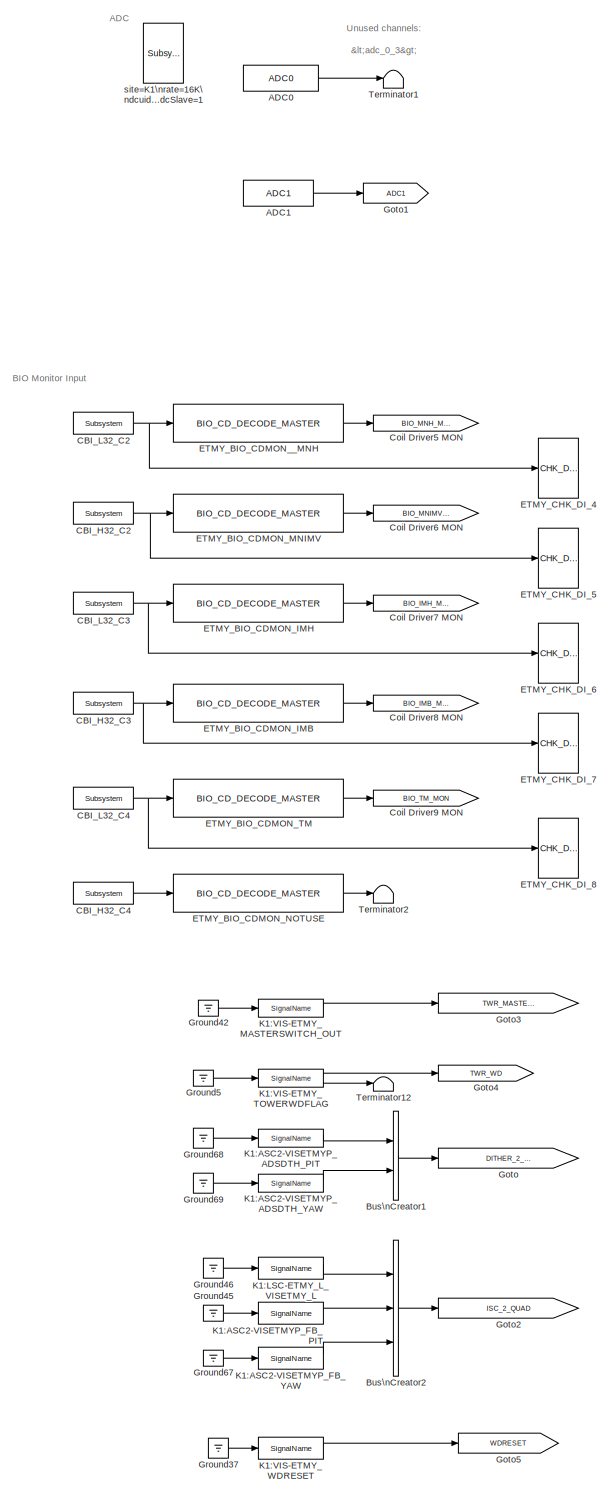
[diagram: root canvas - part 1/3, left side, full height]
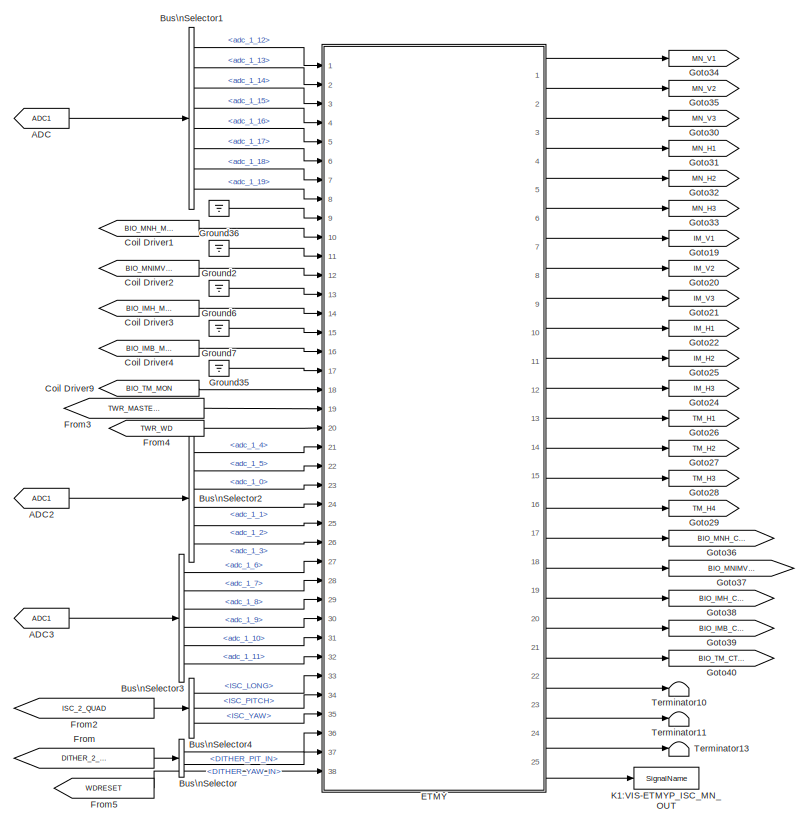
[diagram: root canvas - part 2/3, bottom center region]
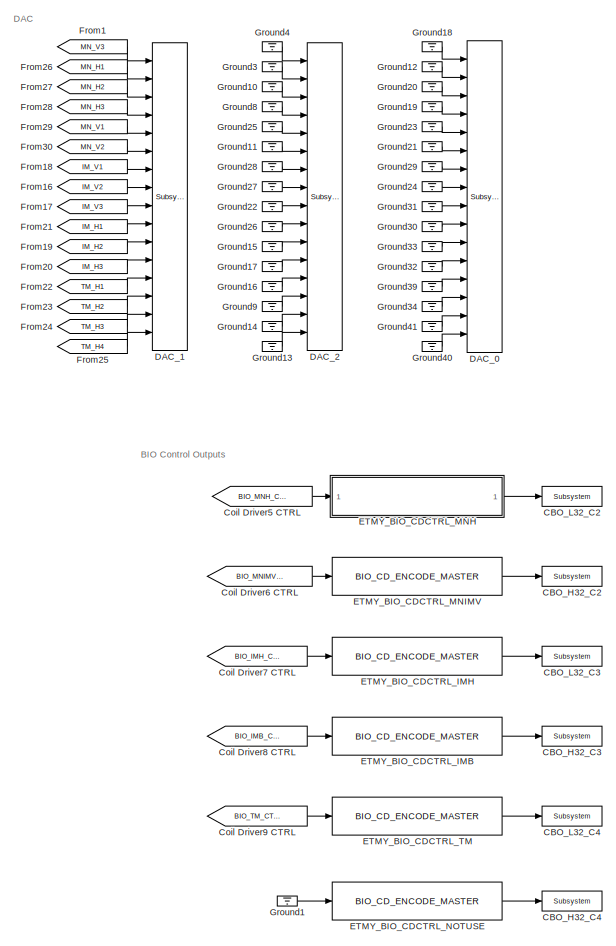
[diagram: root canvas - part 3/3, bottom right region]
MODEL k1visetmyp
KIND model
BLOCK [From] ADC
  GotoTag = ADC1
  SID = 519
BLOCK [Reference] ADC0  REF=cdsAdcx0/ADC0
  AttributesFormatString = %<Description>\\n%<Tag>
  Description = type-GSC_16AI64SSA\ncard_num=0
  Ports = [0, 1]
  SID = 727
  SourceBlock = cdsAdcx0/ADC0
  SourceType = SubSystem
  Tag = cdsAdc
BLOCK [Reference] ADC1  REF=cdsAdcx1/ADC1
  AttributesFormatString = %<Description>\\n%<Tag>
  Description = type-GSC_16AI64SSA\ncard_num=1
  Ports = [0, 1]
  SID = 111
  SourceBlock = cdsAdcx1/ADC1
  SourceType = SubSystem
  Tag = cdsAdc
BLOCK [From] ADC2
  GotoTag = ADC1
  SID = 1117
BLOCK [From] ADC3
  GotoTag = ADC1
  SID = 1119
BLOCK [BusCreator] Bus\nCreator1
  DisplayOption = bar
  InheritFromInputs = on
  Inputs = 'DITHER_PIT_IN','DITHER_YAW_IN'
  Ports = [2, 1]
  SID = 1125
BLOCK [BusCreator] Bus\nCreator2
  DisplayOption = bar
  InheritFromInputs = on
  Inputs = 'ISC_LONG','ISC_PITCH','ISC_YAW'
  Ports = [3, 1]
  SID = 1132
BLOCK [BusSelector] Bus\nSelector
  OutputSignals = DITHER_PIT_IN,DITHER_YAW_IN
  Ports = [1, 2]
  SID = 1126
BLOCK [BusSelector] Bus\nSelector1
  OutputSignals = adc_1_12,adc_1_13,adc_1_14,adc_1_15,adc_1_16,adc_1_17,adc_1_18,adc_1_19
  Ports = [1, 8]
  SID = 696
BLOCK [BusSelector] Bus\nSelector2
  OutputSignals = adc_1_4,adc_1_5,adc_1_0,adc_1_1,adc_1_2,adc_1_3
  Ports = [1, 6]
  SID = 1118
BLOCK [BusSelector] Bus\nSelector3
  OutputSignals = adc_1_6,adc_1_7,adc_1_8,adc_1_9,adc_1_10,adc_1_11
  Ports = [1, 6]
  SID = 1120
BLOCK [BusSelector] Bus\nSelector4
  OutputSignals = ISC_LONG,ISC_PITCH,ISC_YAW
  Ports = [1, 3]
  SID = 1136
BLOCK [Reference] CBI_H32_C2  REF=cdsCDI64/Subsystem
  AttributesFormatString = %<Tag>\\n%<Description>
  Description = card_num=5
  Ports = [0, 1]
  SID = 624
  SourceBlock = cdsCDI64/Subsystem
  SourceType = SubSystem
  Tag = cdsCDI64
BLOCK [Reference] CBI_H32_C3  REF=cdsCDI64/Subsystem
  AttributesFormatString = %<Tag>\\n%<Description>
  Description = card_num=7
  Ports = [0, 1]
  SID = 625
  SourceBlock = cdsCDI64/Subsystem
  SourceType = SubSystem
  Tag = cdsCDI64
BLOCK [Reference] CBI_H32_C4  REF=cdsCDI64/Subsystem
  AttributesFormatString = %<Tag>\\n%<Description>
  Description = card_num=9
  Ports = [0, 1]
  SID = 626
  SourceBlock = cdsCDI64/Subsystem
  SourceType = SubSystem
  Tag = cdsCDI64
BLOCK [Reference] CBI_L32_C2  REF=cdsCDI64/Subsystem
  AttributesFormatString = %<Tag>\\n%<Description>
  Description = card_num=4
  Ports = [0, 1]
  SID = 627
  SourceBlock = cdsCDI64/Subsystem
  SourceType = SubSystem
  Tag = cdsCDI64
BLOCK [Reference] CBI_L32_C3  REF=cdsCDI64/Subsystem
  AttributesFormatString = %<Tag>\\n%<Description>
  Description = card_num=6
  Ports = [0, 1]
  SID = 628
  SourceBlock = cdsCDI64/Subsystem
  SourceType = SubSystem
  Tag = cdsCDI64
BLOCK [Reference] CBI_L32_C4  REF=cdsCDI64/Subsystem
  AttributesFormatString = %<Tag>\\n%<Description>
  Description = card_num=8
  Ports = [0, 1]
  SID = 629
  SourceBlock = cdsCDI64/Subsystem
  SourceType = SubSystem
  Tag = cdsCDI64
BLOCK [Reference] CBO_H32_C2  REF=cdsCDO64/Subsystem
  AttributesFormatString = %<Tag>\\n%<Description>
  Description = card_num=5
  Ports = [1]
  SID = 549
  SourceBlock = cdsCDO64/Subsystem
  SourceType = SubSystem
  Tag = cdsCDO64
BLOCK [Reference] CBO_H32_C3  REF=cdsCDO64/Subsystem
  AttributesFormatString = %<Tag>\\n%<Description>
  Description = card_num=7
  Ports = [1]
  SID = 550
  SourceBlock = cdsCDO64/Subsystem
  SourceType = SubSystem
  Tag = cdsCDO64
BLOCK [Reference] CBO_H32_C4  REF=cdsCDO64/Subsystem
  AttributesFormatString = %<Tag>\\n%<Description>
  Description = card_num=9
  Ports = [1]
  SID = 551
  SourceBlock = cdsCDO64/Subsystem
  SourceType = SubSystem
  Tag = cdsCDO64
BLOCK [Reference] CBO_L32_C2  REF=cdsCDO64/Subsystem
  AttributesFormatString = %<Tag>\\n%<Description>
  Description = card_num=4
  Ports = [1]
  SID = 552
  SourceBlock = cdsCDO64/Subsystem
  SourceType = SubSystem
  Tag = cdsCDO64
BLOCK [Reference] CBO_L32_C3  REF=cdsCDO64/Subsystem
  AttributesFormatString = %<Tag>\\n%<Description>
  Description = card_num=6
  Ports = [1]
  SID = 553
  SourceBlock = cdsCDO64/Subsystem
  SourceType = SubSystem
  Tag = cdsCDO64
BLOCK [Reference] CBO_L32_C4  REF=cdsCDO64/Subsystem
  AttributesFormatString = %<Tag>\\n%<Description>
  Description = card_num=8
  Ports = [1]
  SID = 554
  SourceBlock = cdsCDO64/Subsystem
  SourceType = SubSystem
  Tag = cdsCDO64
BLOCK [From] Coil Driver1
  GotoTag = BIO_MNH_MON
  SID = 618
BLOCK [From] Coil Driver2
  GotoTag = BIO_MNIMV_MON
  SID = 619
BLOCK [From] Coil Driver3
  GotoTag = BIO_IMH_MON
  SID = 620
BLOCK [From] Coil Driver4
  GotoTag = BIO_IMB_MON
  SID = 621
BLOCK [From] Coil Driver5 CTRL
  GotoTag = BIO_MNH_CTRL
  SID = 555
BLOCK [Goto] Coil Driver5 MON
  GotoTag = BIO_MNH_MON
  SID = 630
BLOCK [From] Coil Driver6 CTRL
  GotoTag = BIO_MNIMV_CTRL
  SID = 556
BLOCK [Goto] Coil Driver6 MON
  GotoTag = BIO_MNIMV_MON
  SID = 631
BLOCK [From] Coil Driver7 CTRL
  GotoTag = BIO_IMH_CTRL
  SID = 557
BLOCK [Goto] Coil Driver7 MON
  GotoTag = BIO_IMH_MON
  SID = 632
BLOCK [From] Coil Driver8 CTRL
  GotoTag = BIO_IMB_CTRL
  SID = 558
BLOCK [Goto] Coil Driver8 MON
  GotoTag = BIO_IMB_MON
  SID = 633
BLOCK [From] Coil Driver9
  GotoTag = BIO_TM_MON
  SID = 622
BLOCK [From] Coil Driver9 CTRL
  GotoTag = BIO_TM_CTRL
  SID = 559
BLOCK [Goto] Coil Driver9 MON
  GotoTag = BIO_TM_MON
  SID = 634
BLOCK [Reference] DAC_0  REF=dac/Subsystem  (lib defined in slx_40ef132df75b, slx_b7657ccccc5b, +4 more)
  AttributesFormatString = %<Description>
  Description = type=GSC_16AO16,\ncard_num=0
  Ports = [16]
  SID = 729
  SourceBlock = dac/Subsystem
  SourceType = SubSystem
BLOCK [Reference] DAC_1  REF=dac/Subsystem  (lib defined in slx_40ef132df75b, slx_b7657ccccc5b, +4 more)
  AttributesFormatString = %<Description>
  Description = type=GSC_16AO16,\ncard_num=1
  Ports = [16]
  SID = 112
  SourceBlock = dac/Subsystem
  SourceType = SubSystem
BLOCK [Reference] DAC_2  REF=dac/Subsystem  (lib defined in slx_40ef132df75b, slx_b7657ccccc5b, +4 more)
  AttributesFormatString = %<Description>
  Description = type=GSC_16AO16,\ncard_num=2
  Ports = [16]
  SID = 643
  SourceBlock = dac/Subsystem
  SourceType = SubSystem
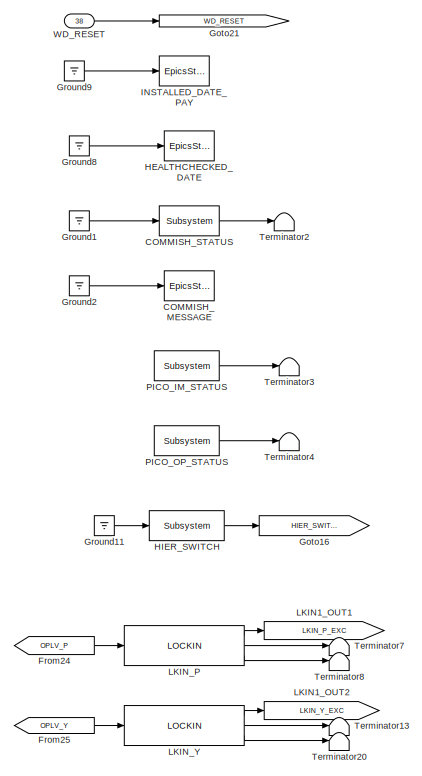
[diagram: ETMY - part 1/6, top right region]
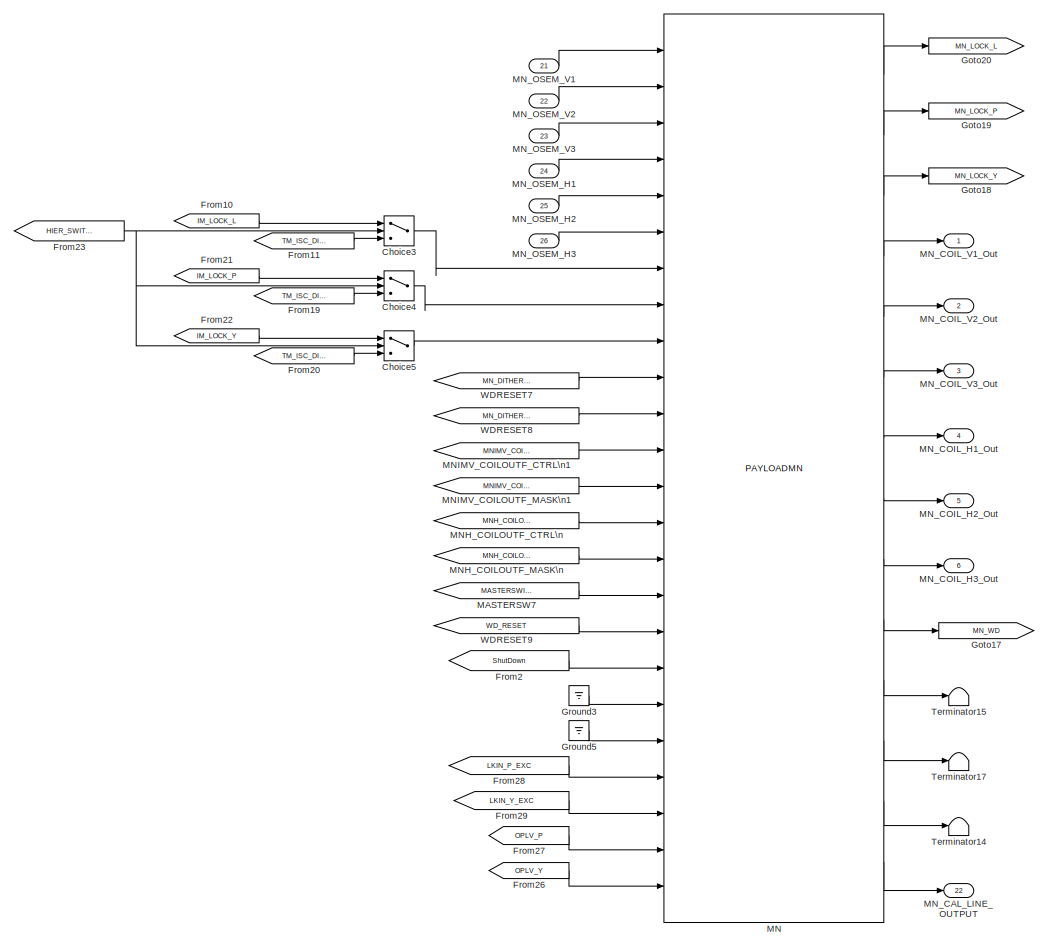
[diagram: ETMY - part 2/6, top left region]
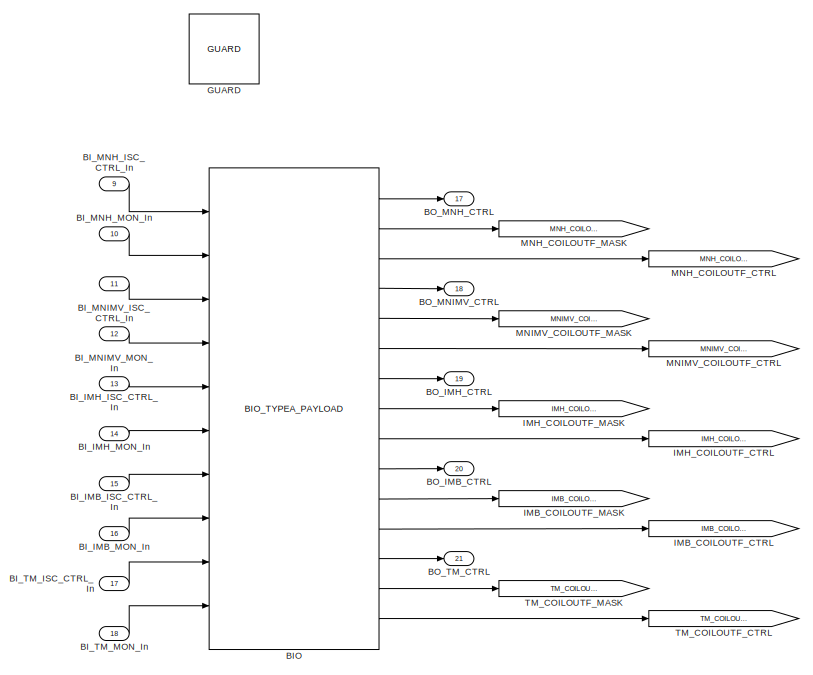
[diagram: ETMY - part 3/6, middle right region]
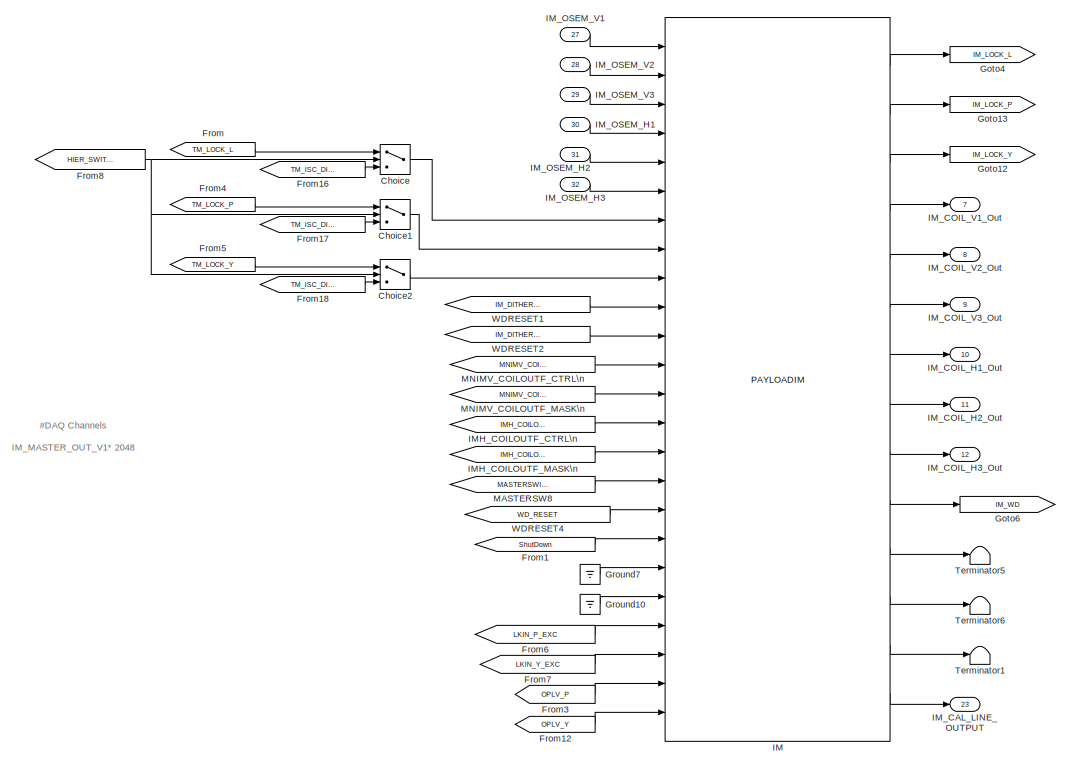
[diagram: ETMY - part 4/6, middle left region]
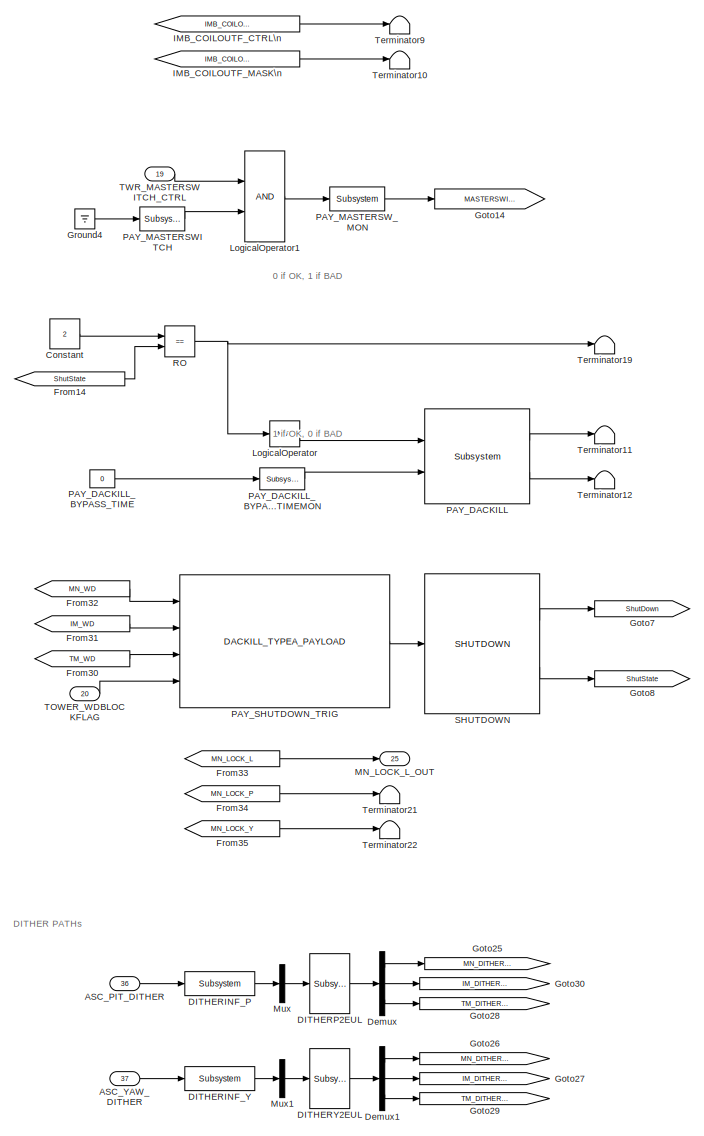
[diagram: ETMY - part 5/6, bottom right region]
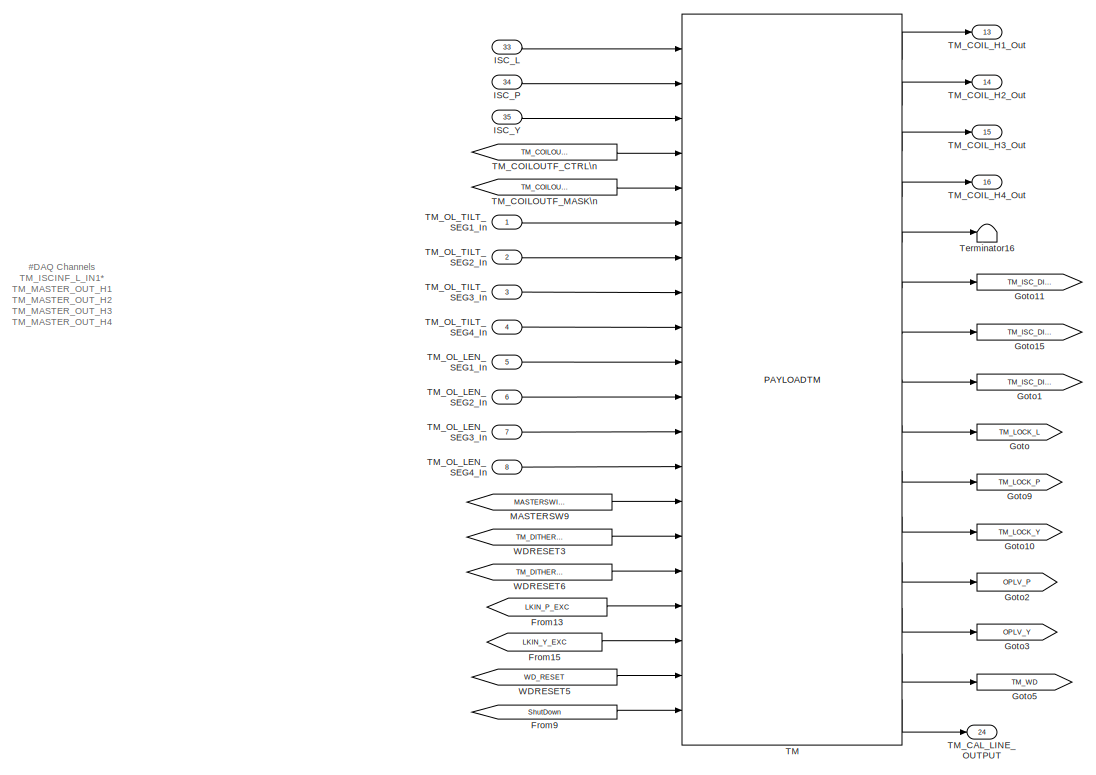
[diagram: ETMY - part 6/6, bottom left region]
BLOCK [SubSystem] ETMY
  AncestorBlock = TYPEA_MASTER/TYPEA_PAYLOAD_MASTER_EMPTY
  Ports = [38, 25]
  RequestExecContextInheritance = off
  SID = 1086
  Variant = off
BLOCK [Inport] ETMY/ASC_PIT_DITHER
  IconDisplay = Port number
  Port = 36
  SID = 1086:4712
BLOCK [Inport] ETMY/ASC_YAW_DITHER
  IconDisplay = Port number
  Port = 37
  SID = 1086:4713
BLOCK [Reference] ETMY/BIO  REF=BIO_TYPEA_MASTER/BIO_TYPEA_PAYLOAD
  Ports = [10, 15]
  SID = 1086:4275
  SourceBlock = BIO_TYPEA_MASTER/BIO_TYPEA_PAYLOAD
  SourceType = SubSystem
BLOCK [Inport] ETMY/BI_IMB_ISC_CTRL_In
  IconDisplay = Port number
  Port = 15
  SID = 1086:4236
BLOCK [Inport] ETMY/BI_IMB_MON_In
  IconDisplay = Port number
  Port = 16
  SID = 1086:4237
BLOCK [Inport] ETMY/BI_IMH_ISC_CTRL_In
  IconDisplay = Port number
  Port = 13
  SID = 1086:4234
BLOCK [Inport] ETMY/BI_IMH_MON_In
  IconDisplay = Port number
  Port = 14
  SID = 1086:4235
BLOCK [Inport] ETMY/BI_MNH_ISC_CTRL_In
  IconDisplay = Port number
  Port = 9
  SID = 1086:4230
BLOCK [Inport] ETMY/BI_MNH_MON_In
  IconDisplay = Port number
  Port = 10
  SID = 1086:4231
BLOCK [Inport] ETMY/BI_MNIMV_ISC_CTRL_In
  IconDisplay = Port number
  Port = 11
  SID = 1086:4232
BLOCK [Inport] ETMY/BI_MNIMV_MON_In
  IconDisplay = Port number
  Port = 12
  SID = 1086:4233
BLOCK [Inport] ETMY/BI_TM_ISC_CTRL_In
  IconDisplay = Port number
  Port = 17
  SID = 1086:4238
BLOCK [Inport] ETMY/BI_TM_MON_In
  IconDisplay = Port number
  Port = 18
  SID = 1086:4239
BLOCK [Outport] ETMY/BO_IMB_CTRL
  IconDisplay = Port number
  Port = 20
  SID = 1086:4496
BLOCK [Outport] ETMY/BO_IMH_CTRL
  IconDisplay = Port number
  Port = 19
  SID = 1086:4495
BLOCK [Outport] ETMY/BO_MNH_CTRL
  IconDisplay = Port number
  Port = 17
  SID = 1086:4493
BLOCK [Outport] ETMY/BO_MNIMV_CTRL
  IconDisplay = Port number
  Port = 18
  SID = 1086:4494
BLOCK [Outport] ETMY/BO_TM_CTRL
  IconDisplay = Port number
  Port = 21
  SID = 1086:4497
BLOCK [Reference] ETMY/COMMISH_MESSAGE  REF=cdsEpicsStringIn/EpicsStringIn
  AttributesFormatString = %<Tag>
  Description = cdsEpicsStringIn
  Ports = [1]
  SID = 1086:4276
  SourceBlock = cdsEpicsStringIn/EpicsStringIn
  SourceType = SubSystem
  Tag = cdsEpicsStringIn
BLOCK [Reference] ETMY/COMMISH_STATUS  REF=cdsEpicsBinIn/Subsystem
  AttributesFormatString = %<Tag>
  Description = Purpose:                                                                            \nCreate an EPICS binary (0 or 1) input channel to the FE realtime controls.          \n                                                                                    \nOperation:                                                                          \nOutputs value from an EPICS ai record. Value is binary i...<+252ch>  <repeated x4 — deduplicated; at blocks: COMMISH_STATUS, HIER_SWITCH, PAY_MASTERSWITCH, WD_RESET>
  Ports = [1, 1]
  SID = 1086:4277
  SourceBlock = cdsEpicsBinIn/Subsystem
  SourceType = SubSystem
  Tag = cdsEpicsBinIn
BLOCK [Switch] ETMY/Choice
  InputSameDT = off
  SID = 1086:4626
  SaturateOnIntegerOverflow = off
  Threshold = 0.5
BLOCK [Switch] ETMY/Choice1
  InputSameDT = off
  SID = 1086:4627
  SaturateOnIntegerOverflow = off
  Threshold = 0.5
BLOCK [Switch] ETMY/Choice2
  InputSameDT = off
  SID = 1086:4628
  SaturateOnIntegerOverflow = off
  Threshold = 0.5
BLOCK [Switch] ETMY/Choice3
  InputSameDT = off
  SID = 1086:4652
  SaturateOnIntegerOverflow = off
  Threshold = 0.5
BLOCK [Switch] ETMY/Choice4
  InputSameDT = off
  SID = 1086:4653
  SaturateOnIntegerOverflow = off
  Threshold = 0.5
BLOCK [Switch] ETMY/Choice5
  InputSameDT = off
  SID = 1086:4654
  SaturateOnIntegerOverflow = off
  Threshold = 0.5
BLOCK [Constant] ETMY/Constant
  SID = 1086:4286
  Value = 2
BLOCK [Reference] ETMY/DITHERINF_P  REF=cdsFilt/Subsystem
  AttributesFormatString = %<Tag>
  Description = Purpose:                                                                                                                                                                                                                                  \nStandard CDS IIR filter module.                                                                                                                                     ...<+1302ch>
  Ports = [1, 1]
  SID = 1086:4714
  SourceBlock = cdsFilt/Subsystem
  SourceType = SubSystem
  Tag = cdsFilt
BLOCK [Reference] ETMY/DITHERINF_Y  REF=cdsFilt/Subsystem
  AttributesFormatString = %<Tag>
  Description = Purpose:                                                                                                                                                                                                                                  \nStandard CDS IIR filter module.                                                                                                                                     ...<+1302ch>
  Ports = [1, 1]
  SID = 1086:4715
  SourceBlock = cdsFilt/Subsystem
  SourceType = SubSystem
  Tag = cdsFilt
BLOCK [Reference] ETMY/DITHERP2EUL  REF=cdsMuxMatrix/Subsystem
  AttributesFormatString = %<Tag>
  Description = Any size matrix. Inputs and outputs must be connected using Mux and Demux parts.
  Ports = [1, 1]
  SID = 1086:4716
  SourceBlock = cdsMuxMatrix/Subsystem
  SourceType = SubSystem
  Tag = cdsMuxMatrix
BLOCK [Reference] ETMY/DITHERY2EUL  REF=cdsMuxMatrix/Subsystem
  AttributesFormatString = %<Tag>
  Description = Any size matrix. Inputs and outputs must be connected using Mux and Demux parts.
  Ports = [1, 1]
  SID = 1086:4717
  SourceBlock = cdsMuxMatrix/Subsystem
  SourceType = SubSystem
  Tag = cdsMuxMatrix
BLOCK [Demux] ETMY/Demux
  DisplayOption = bar
  Outputs = 3
  Ports = [1, 3]
  SID = 1086:4718
BLOCK [Demux] ETMY/Demux1
  DisplayOption = bar
  Outputs = 3
  Ports = [1, 3]
  SID = 1086:4719
BLOCK [From] ETMY/From
  CloseFcn = tagdialog Close
  GotoTag = TM_LOCK_L
  SID = 1086:4629
BLOCK [From] ETMY/From1
  GotoTag = ShutDown
  SID = 1086:4528
BLOCK [From] ETMY/From10
  CloseFcn = tagdialog Close
  GotoTag = IM_LOCK_L
  SID = 1086:4655
BLOCK [From] ETMY/From11
  GotoTag = TM_ISC_DIST_L
  SID = 1086:4656
BLOCK [From] ETMY/From12
  CloseFcn = tagdialog Close
  GotoTag = OPLV_Y
  SID = 1086:4606
BLOCK [From] ETMY/From13
  GotoTag = LKIN_P_EXC
  SID = 1086:4597
BLOCK [From] ETMY/From14
  GotoTag = ShutState
  SID = 1086:4295
BLOCK [From] ETMY/From15
  GotoTag = LKIN_Y_EXC
  SID = 1086:4598
BLOCK [From] ETMY/From16
  GotoTag = TM_ISC_DIST_L
  SID = 1086:4630
BLOCK [From] ETMY/From17
  GotoTag = TM_ISC_DIST_P
  SID = 1086:4631
BLOCK [From] ETMY/From18
  GotoTag = TM_ISC_DIST_Y
  SID = 1086:4632
BLOCK [From] ETMY/From19
  GotoTag = TM_ISC_DIST_P
  SID = 1086:4657
BLOCK [From] ETMY/From2
  GotoTag = ShutDown
  SID = 1086:4529
BLOCK [From] ETMY/From20
  GotoTag = TM_ISC_DIST_Y
  SID = 1086:4658
BLOCK [From] ETMY/From21
  CloseFcn = tagdialog Close
  GotoTag = IM_LOCK_P
  SID = 1086:4659
BLOCK [From] ETMY/From22
  CloseFcn = tagdialog Close
  GotoTag = IM_LOCK_Y
  SID = 1086:4660
BLOCK [From] ETMY/From23
  GotoTag = HIER_SWITCH
  SID = 1086:4661
BLOCK [From] ETMY/From24
  CloseFcn = tagdialog Close
  GotoTag = OPLV_P
  SID = 1086:4662
BLOCK [From] ETMY/From25
  CloseFcn = tagdialog Close
  GotoTag = OPLV_Y
  SID = 1086:4663
BLOCK [From] ETMY/From26
  CloseFcn = tagdialog Close
  GotoTag = OPLV_Y
  SID = 1086:4672
BLOCK [From] ETMY/From27
  CloseFcn = tagdialog Close
  GotoTag = OPLV_P
  SID = 1086:4673
BLOCK [From] ETMY/From28
  GotoTag = LKIN_P_EXC
  SID = 1086:4674
BLOCK [From] ETMY/From29
  GotoTag = LKIN_Y_EXC
  SID = 1086:4675
BLOCK [From] ETMY/From3
  CloseFcn = tagdialog Close
  GotoTag = OPLV_P
  SID = 1086:4609
BLOCK [From] ETMY/From30
  GotoTag = TM_WD
  SID = 1086:4682
BLOCK [From] ETMY/From31
  GotoTag = IM_WD
  SID = 1086:4683
BLOCK [From] ETMY/From32
  GotoTag = MN_WD
  SID = 1086:4684
BLOCK [From] ETMY/From33
  GotoTag = MN_LOCK_L
  SID = 1086:4695
BLOCK [From] ETMY/From34
  GotoTag = MN_LOCK_P
  SID = 1086:4696
BLOCK [From] ETMY/From35
  GotoTag = MN_LOCK_Y
  SID = 1086:4697
BLOCK [From] ETMY/From4
  CloseFcn = tagdialog Close
  GotoTag = TM_LOCK_P
  SID = 1086:4633
BLOCK [From] ETMY/From5
  CloseFcn = tagdialog Close
  GotoTag = TM_LOCK_Y
  SID = 1086:4634
BLOCK [From] ETMY/From6
  GotoTag = LKIN_P_EXC
  SID = 1086:4607
BLOCK [From] ETMY/From7
  GotoTag = LKIN_Y_EXC
  SID = 1086:4608
BLOCK [From] ETMY/From8
  GotoTag = HIER_SWITCH
  SID = 1086:4649
BLOCK [From] ETMY/From9
  GotoTag = ShutDown
  SID = 1086:4349
BLOCK [Reference] ETMY/GUARD  REF=ISC_common/GUARD
  Ports = []
  SID = 1086:4350
  SourceBlock = ISC_common/GUARD
  SourceType = SubSystem
BLOCK [Goto] ETMY/Goto
  GotoTag = TM_LOCK_L
  SID = 1086:4587
BLOCK [Goto] ETMY/Goto1
  GotoTag = TM_ISC_DIST_Y
  SID = 1086:4590
BLOCK [Goto] ETMY/Goto10
  GotoTag = TM_LOCK_Y
  SID = 1086:4588
BLOCK [Goto] ETMY/Goto11
  GotoTag = TM_ISC_DIST_L
  SID = 1086:4589
BLOCK [Goto] ETMY/Goto12
  GotoTag = IM_LOCK_Y
  SID = 1086:4640
BLOCK [Goto] ETMY/Goto13
  GotoTag = IM_LOCK_P
  SID = 1086:4641
BLOCK [Goto] ETMY/Goto14
  GotoTag = MASTERSWITCH
  SID = 1086:4353
BLOCK [Goto] ETMY/Goto15
  GotoTag = TM_ISC_DIST_P
  SID = 1086:4591
BLOCK [Goto] ETMY/Goto16
  GotoTag = HIER_SWITCH
  SID = 1086:4648
BLOCK [Goto] ETMY/Goto17
  GotoTag = MN_WD
  SID = 1086:4677
BLOCK [Goto] ETMY/Goto18
  GotoTag = MN_LOCK_Y
  SID = 1086:4691
BLOCK [Goto] ETMY/Goto19
  GotoTag = MN_LOCK_P
  SID = 1086:4692
BLOCK [Goto] ETMY/Goto2
  GotoTag = OPLV_P
  SID = 1086:4593
BLOCK [Goto] ETMY/Goto20
  GotoTag = MN_LOCK_L
  SID = 1086:4693
BLOCK [Goto] ETMY/Goto21
  GotoTag = WD_RESET
  SID = 1086:4736
BLOCK [Goto] ETMY/Goto25
  GotoTag = MN_DITHER_PIT
  SID = 1086:4708
BLOCK [Goto] ETMY/Goto26
  GotoTag = MN_DITHER_YAW
  SID = 1086:4709
BLOCK [Goto] ETMY/Goto27
  GotoTag = IM_DITHER_YAW
  SID = 1086:4720
BLOCK [Goto] ETMY/Goto28
  GotoTag = TM_DITHER_PIT
  SID = 1086:4721
BLOCK [Goto] ETMY/Goto29
  GotoTag = TM_DITHER_YAW
  SID = 1086:4722
BLOCK [Goto] ETMY/Goto3
  GotoTag = OPLV_Y
  SID = 1086:4594
BLOCK [Goto] ETMY/Goto30
  GotoTag = IM_DITHER_PIT
  SID = 1086:4723
BLOCK [Goto] ETMY/Goto4
  GotoTag = IM_LOCK_L
  SID = 1086:4639
BLOCK [Goto] ETMY/Goto5
  GotoTag = TM_WD
  SID = 1086:4592
BLOCK [Goto] ETMY/Goto6
  GotoTag = IM_WD
  SID = 1086:4602
BLOCK [Goto] ETMY/Goto7
  GotoTag = ShutDown
  SID = 1086:4355
BLOCK [Goto] ETMY/Goto8
  GotoTag = ShutState
  SID = 1086:4356
BLOCK [Goto] ETMY/Goto9
  GotoTag = TM_LOCK_P
  SID = 1086:4595
BLOCK [Ground] ETMY/Ground1
  SID = 1086:4392
BLOCK [Ground] ETMY/Ground10
  SID = 1086:4611
BLOCK [Ground] ETMY/Ground11
  SID = 1086:4635
BLOCK [Ground] ETMY/Ground2
  SID = 1086:4393
BLOCK [Ground] ETMY/Ground3
  SID = 1086:4701
BLOCK [Ground] ETMY/Ground4
  SID = 1086:4395
BLOCK [Ground] ETMY/Ground5
  SID = 1086:4702
BLOCK [Ground] ETMY/Ground7
  SID = 1086:4610
BLOCK [Ground] ETMY/Ground8
  SID = 1086:4541
BLOCK [Ground] ETMY/Ground9
  SID = 1086:4550
BLOCK [Reference] ETMY/HEALTHCHECKED_DATE  REF=cdsEpicsStringIn/EpicsStringIn
  AttributesFormatString = %<Tag>
  Description = cdsEpicsStringIn
  Ports = [1]
  SID = 1086:4540
  SourceBlock = cdsEpicsStringIn/EpicsStringIn
  SourceType = SubSystem
  Tag = cdsEpicsStringIn
BLOCK [Reference] ETMY/HIER_SWITCH  REF=cdsEpicsBinIn/Subsystem
  AttributesFormatString = %<Tag>
  Ports = [1, 1]
  SID = 1086:4636
  SourceBlock = cdsEpicsBinIn/Subsystem
  SourceType = SubSystem
  Tag = cdsEpicsBinIn
BLOCK [Reference] ETMY/IM  REF=PAYLOAD_MASTER/PAYLOADIM
  Description = SIXOSEMSTAGE_FACE_MASTER
  Ports = [24, 14]
  SID = 1086:4579
  SourceBlock = PAYLOAD_MASTER/PAYLOADIM
  SourceType = SubSystem
BLOCK [Goto] ETMY/IMB_COILOUTF_CTRL
  GotoTag = IMB_COILOUTF_CTRL
  SID = 1086:4398
BLOCK [From] ETMY/IMB_COILOUTF_CTRL\n
  CloseFcn = tagdialog Close
  GotoTag = IMB_COILOUTF_CTRL
  SID = 1086:4399
BLOCK [Goto] ETMY/IMB_COILOUTF_MASK
  GotoTag = IMB_COILOUTF_MASK
  SID = 1086:4400
BLOCK [From] ETMY/IMB_COILOUTF_MASK\n
  CloseFcn = tagdialog Close
  GotoTag = IMB_COILOUTF_MASK
  SID = 1086:4401
BLOCK [Goto] ETMY/IMH_COILOUTF_CTRL
  GotoTag = IMH_COILOUTF_CTRL
  SID = 1086:4402
BLOCK [From] ETMY/IMH_COILOUTF_CTRL\n
  CloseFcn = tagdialog Close
  GotoTag = IMH_COILOUTF_CTRL
  SID = 1086:4403
BLOCK [Goto] ETMY/IMH_COILOUTF_MASK
  GotoTag = IMH_COILOUTF_MASK
  SID = 1086:4404
BLOCK [From] ETMY/IMH_COILOUTF_MASK\n
  CloseFcn = tagdialog Close
  GotoTag = IMH_COILOUTF_MASK
  SID = 1086:4405
BLOCK [Outport] ETMY/IM_CAL_LINE_OUTPUT
  IconDisplay = Port number
  Port = 23
  SID = 1086:4732
BLOCK [Outport] ETMY/IM_COIL_H1_Out
  IconDisplay = Port number
  Port = 10
  SID = 1086:4486
BLOCK [Outport] ETMY/IM_COIL_H2_Out
  IconDisplay = Port number
  Port = 11
  SID = 1086:4487
BLOCK [Outport] ETMY/IM_COIL_H3_Out
  IconDisplay = Port number
  Port = 12
  SID = 1086:4488
BLOCK [Outport] ETMY/IM_COIL_V1_Out
  IconDisplay = Port number
  Port = 7
  SID = 1086:4483
BLOCK [Outport] ETMY/IM_COIL_V2_Out
  IconDisplay = Port number
  Port = 8
  SID = 1086:4484
BLOCK [Outport] ETMY/IM_COIL_V3_Out
  IconDisplay = Port number
  Port = 9
  SID = 1086:4485
BLOCK [Inport] ETMY/IM_OSEM_H1
  IconDisplay = Port number
  Port = 30
  SID = 1086:4268
BLOCK [Inport] ETMY/IM_OSEM_H2
  IconDisplay = Port number
  Port = 31
  SID = 1086:4269
BLOCK [Inport] ETMY/IM_OSEM_H3
  IconDisplay = Port number
  Port = 32
  SID = 1086:4270
BLOCK [Inport] ETMY/IM_OSEM_V1
  IconDisplay = Port number
  Port = 27
  SID = 1086:4265
BLOCK [Inport] ETMY/IM_OSEM_V2
  IconDisplay = Port number
  Port = 28
  SID = 1086:4266
BLOCK [Inport] ETMY/IM_OSEM_V3
  IconDisplay = Port number
  Port = 29
  SID = 1086:4267
BLOCK [Reference] ETMY/INSTALLED_DATE_PAY  REF=cdsEpicsStringIn/EpicsStringIn
  AttributesFormatString = %<Tag>
  Description = cdsEpicsStringIn
  Ports = [1]
  SID = 1086:4551
  SourceBlock = cdsEpicsStringIn/EpicsStringIn
  SourceType = SubSystem
  Tag = cdsEpicsStringIn
BLOCK [Inport] ETMY/ISC_L
  IconDisplay = Port number
  Port = 33
  SID = 1086:4581
BLOCK [Inport] ETMY/ISC_P
  IconDisplay = Port number
  Port = 34
  SID = 1086:4582
BLOCK [Inport] ETMY/ISC_Y
  IconDisplay = Port number
  Port = 35
  SID = 1086:4583
BLOCK [Goto] ETMY/LKIN1_OUT1
  GotoTag = LKIN_P_EXC
  SID = 1086:4664
BLOCK [Goto] ETMY/LKIN1_OUT2
  GotoTag = LKIN_Y_EXC
  SID = 1086:4665
BLOCK [Reference] ETMY/LKIN_P  REF=lockin/LOCKIN
  AttributesFormatString = %<Tag>
  Description = ADL=LOCKIN.adl
  Ports = [1, 3]
  SID = 1086:4666
  SourceBlock = lockin/LOCKIN
  SourceType = SubSystem
BLOCK [Reference] ETMY/LKIN_Y  REF=lockin/LOCKIN
  AttributesFormatString = %<Tag>
  Description = ADL=LOCKIN.adl
  Ports = [1, 3]
  SID = 1086:4667
  SourceBlock = lockin/LOCKIN
  SourceType = SubSystem
BLOCK [Logic] ETMY/LogicalOperator
  AllPortsSameDT = off
  Operator = NOT
  OutDataTypeStr = boolean
  Ports = [1, 1]
  SID = 1086:4418
BLOCK [Logic] ETMY/LogicalOperator1
  AllPortsSameDT = off
  OutDataTypeStr = boolean
  Ports = [2, 1]
  SID = 1086:4419
BLOCK [From] ETMY/MASTERSW7
  CloseFcn = tagdialog Close
  GotoTag = MASTERSWITCH
  SID = 1086:4420
BLOCK [From] ETMY/MASTERSW8
  CloseFcn = tagdialog Close
  GotoTag = MASTERSWITCH
  SID = 1086:4421
BLOCK [From] ETMY/MASTERSW9
  CloseFcn = tagdialog Close
  GotoTag = MASTERSWITCH
  SID = 1086:4422
BLOCK [Reference] ETMY/MN  REF=PAYLOAD_MASTER/PAYLOADMN
  Description = SIXOSEMSTAGE_FACE_MASTER
  Ports = [24, 14]
  SID = 1086:4578
  SourceBlock = PAYLOAD_MASTER/PAYLOADMN
  SourceType = SubSystem
BLOCK [Goto] ETMY/MNH_COILOUTF_CTRL
  GotoTag = MNH_COILOUTF_CTRL
  SID = 1086:4424
BLOCK [From] ETMY/MNH_COILOUTF_CTRL\n
  CloseFcn = tagdialog Close
  GotoTag = MNH_COILOUTF_CTRL
  SID = 1086:4425
BLOCK [Goto] ETMY/MNH_COILOUTF_MASK
  GotoTag = MNH_COILOUTF_MASK
  SID = 1086:4426
BLOCK [From] ETMY/MNH_COILOUTF_MASK\n
  CloseFcn = tagdialog Close
  GotoTag = MNH_COILOUTF_MASK
  SID = 1086:4427
BLOCK [Goto] ETMY/MNIMV_COILOUTF_CTRL
  GotoTag = MNIMV_COILOUTF_CTRL
  SID = 1086:4428
BLOCK [From] ETMY/MNIMV_COILOUTF_CTRL\n
  CloseFcn = tagdialog Close
  GotoTag = MNIMV_COILOUTF_CTRL
  SID = 1086:4429
BLOCK [From] ETMY/MNIMV_COILOUTF_CTRL\n1
  CloseFcn = tagdialog Close
  GotoTag = MNIMV_COILOUTF_CTRL
  SID = 1086:4430
BLOCK [Goto] ETMY/MNIMV_COILOUTF_MASK
  GotoTag = MNIMV_COILOUTF_MASK
  SID = 1086:4431
BLOCK [From] ETMY/MNIMV_COILOUTF_MASK\n
  CloseFcn = tagdialog Close
  GotoTag = MNIMV_COILOUTF_MASK
  SID = 1086:4432
BLOCK [From] ETMY/MNIMV_COILOUTF_MASK\n1
  CloseFcn = tagdialog Close
  GotoTag = MNIMV_COILOUTF_MASK
  SID = 1086:4433
BLOCK [Outport] ETMY/MN_CAL_LINE_OUTPUT
  IconDisplay = Port number
  Port = 22
  SID = 1086:4731
BLOCK [Outport] ETMY/MN_COIL_H1_Out
  IconDisplay = Port number
  Port = 4
  SID = 1086:4480
BLOCK [Outport] ETMY/MN_COIL_H2_Out
  IconDisplay = Port number
  Port = 5
  SID = 1086:4481
BLOCK [Outport] ETMY/MN_COIL_H3_Out
  IconDisplay = Port number
  Port = 6
  SID = 1086:4482
BLOCK [Outport] ETMY/MN_COIL_V1_Out
  IconDisplay = Port number
  SID = 1086:4477
BLOCK [Outport] ETMY/MN_COIL_V2_Out
  IconDisplay = Port number
  Port = 2
  SID = 1086:4478
BLOCK [Outport] ETMY/MN_COIL_V3_Out
  IconDisplay = Port number
  Port = 3
  SID = 1086:4479
BLOCK [Outport] ETMY/MN_LOCK_L_OUT
  IconDisplay = Port number
  Port = 25
  SID = 1086:4734
BLOCK [Inport] ETMY/MN_OSEM_H1
  IconDisplay = Port number
  Port = 24
  SID = 1086:4262
BLOCK [Inport] ETMY/MN_OSEM_H2
  IconDisplay = Port number
  Port = 25
  SID = 1086:4263
BLOCK [Inport] ETMY/MN_OSEM_H3
  IconDisplay = Port number
  Port = 26
  SID = 1086:4264
BLOCK [Inport] ETMY/MN_OSEM_V1
  IconDisplay = Port number
  Port = 21
  SID = 1086:4259
BLOCK [Inport] ETMY/MN_OSEM_V2
  IconDisplay = Port number
  Port = 22
  SID = 1086:4260
BLOCK [Inport] ETMY/MN_OSEM_V3
  IconDisplay = Port number
  Port = 23
  SID = 1086:4261
BLOCK [Mux] ETMY/Mux
  DisplayOption = bar
  Inputs = 1
  Ports = [1, 1]
  SID = 1086:4724
BLOCK [Mux] ETMY/Mux1
  DisplayOption = bar
  Inputs = 1
  Ports = [1, 1]
  SID = 1086:4725
BLOCK [Reference] ETMY/PAY_DACKILL  REF=cdsDacKill/Subsystem
  AttributesFormatString = %<Description>
  Description = cdsDacKill
  Ports = [2, 2]
  SID = 1086:4434
  SourceBlock = cdsDacKill/Subsystem
  SourceType = SubSystem
BLOCK [Constant] ETMY/PAY_DACKILL_BYPASS_TIME
  SID = 1086:4435
  Value = 0
BLOCK [Reference] ETMY/PAY_DACKILL_BYPASS_TIMEMON  REF=cdsEpicsOut/Subsystem
  AttributesFormatString = %<Tag>
  Description = Purpose:                                          \nOutput a FE signal to an EPICS channel.           \n                                                  \nOperation:                                        \nTakes input value and passes it to EPICS record.  \n                                                  \nUsage:                                            \nName the part with the desired EPICS...<+14ch>  <repeated x3 — deduplicated; at blocks: PAY_DACKILL_BYPASS_TIMEMON, PAY_MASTERSW_MON, DIO_OUT>
  Ports = [1, 1]
  SID = 1086:4436
  SourceBlock = cdsEpicsOut/Subsystem
  SourceType = SubSystem
  Tag = cdsEpicsOutput
BLOCK [Reference] ETMY/PAY_MASTERSWITCH  REF=cdsEpicsBinIn/Subsystem
  AttributesFormatString = %<Tag>
  Ports = [1, 1]
  SID = 1086:4437
  SourceBlock = cdsEpicsBinIn/Subsystem
  SourceType = SubSystem
  Tag = cdsEpicsBinIn
BLOCK [Reference] ETMY/PAY_MASTERSW_MON  REF=cdsEpicsOut/Subsystem
  AttributesFormatString = %<Tag>
  Ports = [1, 1]
  SID = 1086:4438
  SourceBlock = cdsEpicsOut/Subsystem
  SourceType = SubSystem
  Tag = cdsEpicsOutput
BLOCK [Reference] ETMY/PAY_SHUTDOWN_TRIG  REF=VIS_LIB/DACKILL_TYPEA_PAYLOAD
  Ports = [4, 1]
  SID = 1086:4440
  SourceBlock = VIS_LIB/DACKILL_TYPEA_PAYLOAD
  SourceType = SubSystem
BLOCK [Reference] ETMY/PICO_IM_STATUS  REF=cdsEpicsIn/Subsystem
  AttributesFormatString = %<Tag>
  Description = Purpose:                                                                              \nCreate an EPICS input channel connection to the FE realtime controls.                 \n                                                                                      \nOperation:                                                                            \nOutputs value from an EPICS ai record. Value is ...<+266ch>
  Ports = [0, 1]
  SID = 1086:4576
  SourceBlock = cdsEpicsIn/Subsystem
  SourceType = SubSystem
  Tag = cdsEpicsIn
BLOCK [Reference] ETMY/PICO_OP_STATUS  REF=cdsEpicsIn/Subsystem
  AttributesFormatString = %<Tag>
  Description = Purpose:                                                                              \nCreate an EPICS input channel connection to the FE realtime controls.                 \n                                                                                      \nOperation:                                                                            \nOutputs value from an EPICS ai record. Value is ...<+266ch>
  Ports = [0, 1]
  SID = 1086:4577
  SourceBlock = cdsEpicsIn/Subsystem
  SourceType = SubSystem
  Tag = cdsEpicsIn
BLOCK [RelationalOperator] ETMY/RO
  InputSameDT = off
  Operator = ==
  OutDataTypeStr = boolean
  Ports = [2, 1]
  SID = 1086:4441
BLOCK [Reference] ETMY/SHUTDOWN  REF=SHUTDOWN/SHUTDOWN
  Ports = [1, 2]
  SID = 1086:4442
  SourceBlock = SHUTDOWN/SHUTDOWN
  SourceType = SubSystem
BLOCK [Reference] ETMY/TM  REF=PAYLOAD_MASTER/PAYLOADTM
  Ports = [20, 15]
  SID = 1086:4580
  SourceBlock = PAYLOAD_MASTER/PAYLOADTM
  SourceType = SubSystem
BLOCK [Outport] ETMY/TM_CAL_LINE_OUTPUT
  IconDisplay = Port number
  Port = 24
  SID = 1086:4733
BLOCK [Goto] ETMY/TM_COILOUTF_CTRL
  GotoTag = TM_COILOUTF_CTRL
  SID = 1086:4457
BLOCK [From] ETMY/TM_COILOUTF_CTRL\n
  CloseFcn = tagdialog Close
  GotoTag = TM_COILOUTF_CTRL
  SID = 1086:4458
BLOCK [Goto] ETMY/TM_COILOUTF_MASK
  GotoTag = TM_COILOUTF_MASK
  SID = 1086:4462
BLOCK [From] ETMY/TM_COILOUTF_MASK\n
  CloseFcn = tagdialog Close
  GotoTag = TM_COILOUTF_MASK
  SID = 1086:4463
BLOCK [Outport] ETMY/TM_COIL_H1_Out
  IconDisplay = Port number
  Port = 13
  SID = 1086:4489
BLOCK [Outport] ETMY/TM_COIL_H2_Out
  IconDisplay = Port number
  Port = 14
  SID = 1086:4490
BLOCK [Outport] ETMY/TM_COIL_H3_Out
  IconDisplay = Port number
  Port = 15
  SID = 1086:4491
BLOCK [Outport] ETMY/TM_COIL_H4_Out
  IconDisplay = Port number
  Port = 16
  SID = 1086:4492
BLOCK [Inport] ETMY/TM_OL_LEN_SEG1_In
  IconDisplay = Port number
  Port = 5
  SID = 1086:4226
BLOCK [Inport] ETMY/TM_OL_LEN_SEG2_In
  IconDisplay = Port number
  Port = 6
  SID = 1086:4227
BLOCK [Inport] ETMY/TM_OL_LEN_SEG3_In
  IconDisplay = Port number
  Port = 7
  SID = 1086:4228
BLOCK [Inport] ETMY/TM_OL_LEN_SEG4_In
  IconDisplay = Port number
  Port = 8
  SID = 1086:4229
BLOCK [Inport] ETMY/TM_OL_TILT_SEG1_In
  IconDisplay = Port number
  SID = 1086:4222
BLOCK [Inport] ETMY/TM_OL_TILT_SEG2_In
  IconDisplay = Port number
  Port = 2
  SID = 1086:4223
BLOCK [Inport] ETMY/TM_OL_TILT_SEG3_In
  IconDisplay = Port number
  Port = 3
  SID = 1086:4224
BLOCK [Inport] ETMY/TM_OL_TILT_SEG4_In
  IconDisplay = Port number
  Port = 4
  SID = 1086:4225
BLOCK [Inport] ETMY/TOWER_WDBLOCKFLAG
  IconDisplay = Port number
  Port = 20
  SID = 1086:4255
BLOCK [Inport] ETMY/TWR_MASTERSWITCH_CTRL
  IconDisplay = Port number
  Port = 19
  SID = 1086:4254
BLOCK [Terminator] ETMY/Terminator1
  SID = 1086:4603
BLOCK [Terminator] ETMY/Terminator10
  SID = 1086:4465
BLOCK [Terminator] ETMY/Terminator11
  SID = 1086:4466
BLOCK [Terminator] ETMY/Terminator12
  SID = 1086:4467
BLOCK [Terminator] ETMY/Terminator13
  SID = 1086:4671
BLOCK [Terminator] ETMY/Terminator14
  SID = 1086:4678
BLOCK [Terminator] ETMY/Terminator15
  SID = 1086:4679
BLOCK [Terminator] ETMY/Terminator16
  SID = 1086:4596
BLOCK [Terminator] ETMY/Terminator17
  SID = 1086:4680
BLOCK [Terminator] ETMY/Terminator19
  SID = 1086:4468
BLOCK [Terminator] ETMY/Terminator2
  SID = 1086:4469
BLOCK [Terminator] ETMY/Terminator20
  SID = 1086:4668
BLOCK [Terminator] ETMY/Terminator21
  SID = 1086:4699
BLOCK [Terminator] ETMY/Terminator22
  SID = 1086:4700
BLOCK [Terminator] ETMY/Terminator3
  SID = 1086:4557
BLOCK [Terminator] ETMY/Terminator4
  SID = 1086:4560
BLOCK [Terminator] ETMY/Terminator5
  SID = 1086:4604
BLOCK [Terminator] ETMY/Terminator6
  SID = 1086:4605
BLOCK [Terminator] ETMY/Terminator7
  SID = 1086:4669
BLOCK [Terminator] ETMY/Terminator8
  SID = 1086:4670
BLOCK [Terminator] ETMY/Terminator9
  SID = 1086:4470
BLOCK [From] ETMY/WDRESET1
  CloseFcn = tagdialog Close
  GotoTag = IM_DITHER_PIT
  SID = 1086:4613
BLOCK [From] ETMY/WDRESET2
  CloseFcn = tagdialog Close
  GotoTag = IM_DITHER_YAW
  SID = 1086:4614
BLOCK [From] ETMY/WDRESET3
  CloseFcn = tagdialog Close
  GotoTag = TM_DITHER_PIT
  SID = 1086:4599
BLOCK [From] ETMY/WDRESET4
  CloseFcn = tagdialog Close
  GotoTag = WD_RESET
  SID = 1086:4612
BLOCK [From] ETMY/WDRESET5
  CloseFcn = tagdialog Close
  GotoTag = WD_RESET
  SID = 1086:4601
BLOCK [From] ETMY/WDRESET6
  CloseFcn = tagdialog Close
  GotoTag = TM_DITHER_YAW
  SID = 1086:4600
BLOCK [From] ETMY/WDRESET7
  CloseFcn = tagdialog Close
  GotoTag = MN_DITHER_PIT
  SID = 1086:4685
BLOCK [From] ETMY/WDRESET8
  CloseFcn = tagdialog Close
  GotoTag = MN_DITHER_YAW
  SID = 1086:4686
BLOCK [From] ETMY/WDRESET9
  CloseFcn = tagdialog Close
  GotoTag = WD_RESET
  SID = 1086:4687
BLOCK [Inport] ETMY/WD_RESET
  IconDisplay = Port number
  Port = 38
  SID = 1086:4735
BLOCK [Reference] ETMY_BIO_CDCTRL_IMB  REF=BIO_CD_ENCODE_MASTER/BIO_CD_ENCODE_MASTER
  Ports = [1, 1]
  SID = 560
  SourceBlock = BIO_CD_ENCODE_MASTER/BIO_CD_ENCODE_MASTER
  SourceType = SubSystem
BLOCK [Reference] ETMY_BIO_CDCTRL_IMH  REF=BIO_CD_ENCODE_MASTER/BIO_CD_ENCODE_MASTER
  Ports = [1, 1]
  SID = 561
  SourceBlock = BIO_CD_ENCODE_MASTER/BIO_CD_ENCODE_MASTER
  SourceType = SubSystem
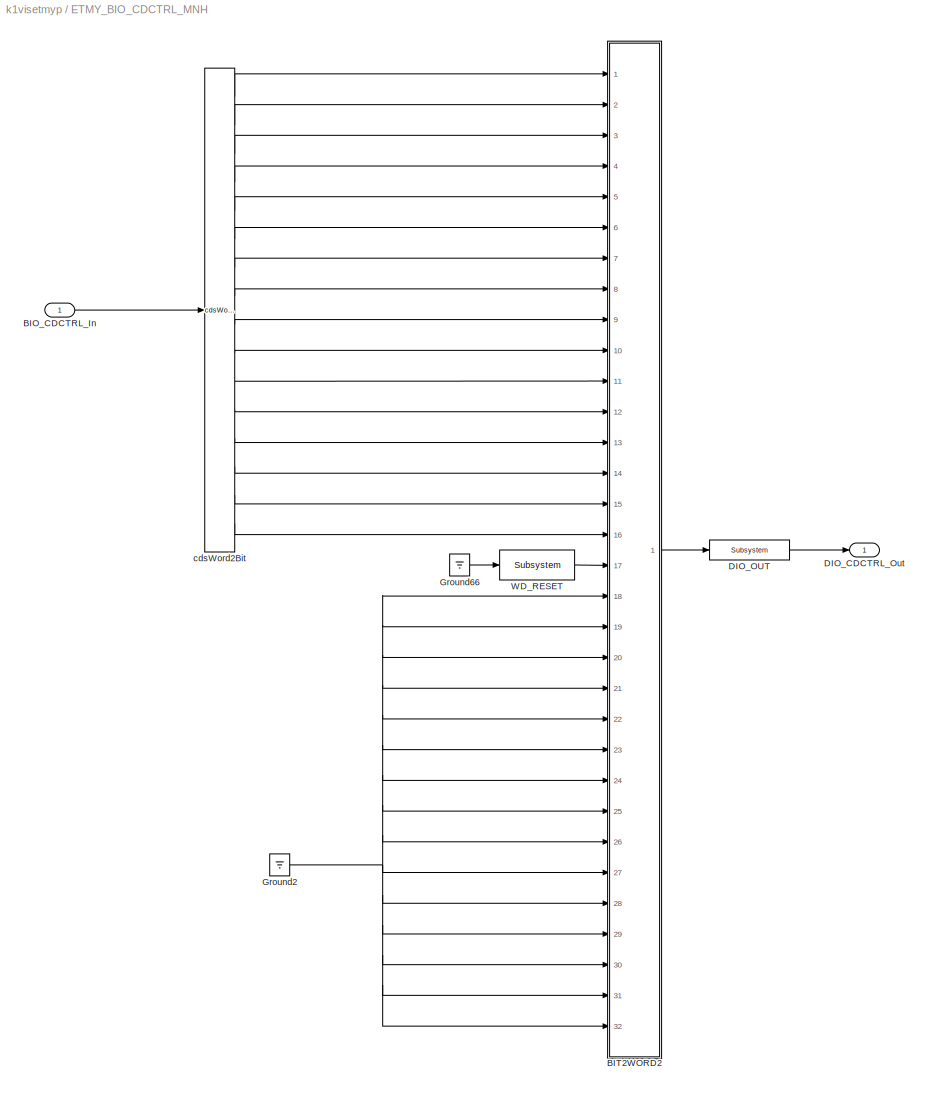
BLOCK [SubSystem] ETMY_BIO_CDCTRL_MNH
  Ports = [1, 1]
  RequestExecContextInheritance = off
  SID = 562
  Variant = off
BLOCK [Inport] ETMY_BIO_CDCTRL_MNH/BIO_CDCTRL_In
  IconDisplay = Port number
  SID = 563
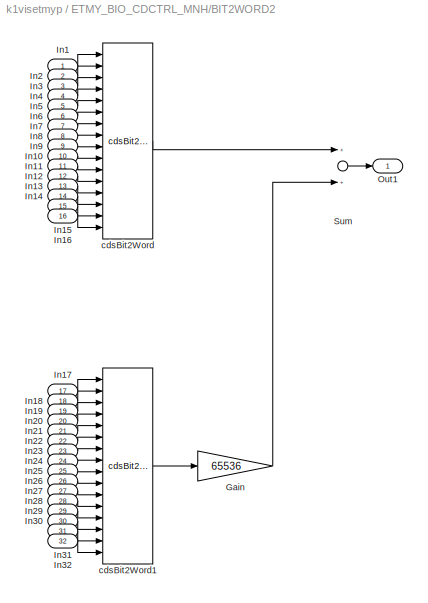
BLOCK [SubSystem] ETMY_BIO_CDCTRL_MNH/BIT2WORD2
  Ports = [32, 1]
  RequestExecContextInheritance = off
  SID = 564
  Variant = off
BLOCK [Gain] ETMY_BIO_CDCTRL_MNH/BIT2WORD2/Gain
  Gain = 65536
  OutDataTypeStr = Inherit: Inherit via internal rule
  ParamDataTypeStr = Inherit: Inherit via internal rule
  SID = 597
  SaturateOnIntegerOverflow = off
BLOCK [Inport] ETMY_BIO_CDCTRL_MNH/BIT2WORD2/In1
  IconDisplay = Port number
  SID = 565
BLOCK [Inport] ETMY_BIO_CDCTRL_MNH/BIT2WORD2/In10
  IconDisplay = Port number
  Port = 10
  SID = 574
BLOCK [Inport] ETMY_BIO_CDCTRL_MNH/BIT2WORD2/In11
  IconDisplay = Port number
  Port = 11
  SID = 575
BLOCK [Inport] ETMY_BIO_CDCTRL_MNH/BIT2WORD2/In12
  IconDisplay = Port number
  Port = 12
  SID = 576
BLOCK [Inport] ETMY_BIO_CDCTRL_MNH/BIT2WORD2/In13
  IconDisplay = Port number
  Port = 13
  SID = 577
BLOCK [Inport] ETMY_BIO_CDCTRL_MNH/BIT2WORD2/In14
  IconDisplay = Port number
  Port = 14
  SID = 578
BLOCK [Inport] ETMY_BIO_CDCTRL_MNH/BIT2WORD2/In15
  IconDisplay = Port number
  Port = 15
  SID = 579
BLOCK [Inport] ETMY_BIO_CDCTRL_MNH/BIT2WORD2/In16
  IconDisplay = Port number
  Port = 16
  SID = 580
BLOCK [Inport] ETMY_BIO_CDCTRL_MNH/BIT2WORD2/In17
  IconDisplay = Port number
  Port = 17
  SID = 581
BLOCK [Inport] ETMY_BIO_CDCTRL_MNH/BIT2WORD2/In18
  IconDisplay = Port number
  Port = 18
  SID = 582
BLOCK [Inport] ETMY_BIO_CDCTRL_MNH/BIT2WORD2/In19
  IconDisplay = Port number
  Port = 19
  SID = 583
BLOCK [Inport] ETMY_BIO_CDCTRL_MNH/BIT2WORD2/In2
  IconDisplay = Port number
  Port = 2
  SID = 566
BLOCK [Inport] ETMY_BIO_CDCTRL_MNH/BIT2WORD2/In20
  IconDisplay = Port number
  Port = 20
  SID = 584
BLOCK [Inport] ETMY_BIO_CDCTRL_MNH/BIT2WORD2/In21
  IconDisplay = Port number
  Port = 21
  SID = 585
BLOCK [Inport] ETMY_BIO_CDCTRL_MNH/BIT2WORD2/In22
  IconDisplay = Port number
  Port = 22
  SID = 586
BLOCK [Inport] ETMY_BIO_CDCTRL_MNH/BIT2WORD2/In23
  IconDisplay = Port number
  Port = 23
  SID = 587
BLOCK [Inport] ETMY_BIO_CDCTRL_MNH/BIT2WORD2/In24
  IconDisplay = Port number
  Port = 24
  SID = 588
BLOCK [Inport] ETMY_BIO_CDCTRL_MNH/BIT2WORD2/In25
  IconDisplay = Port number
  Port = 25
  SID = 589
BLOCK [Inport] ETMY_BIO_CDCTRL_MNH/BIT2WORD2/In26
  IconDisplay = Port number
  Port = 26
  SID = 590
BLOCK [Inport] ETMY_BIO_CDCTRL_MNH/BIT2WORD2/In27
  IconDisplay = Port number
  Port = 27
  SID = 591
BLOCK [Inport] ETMY_BIO_CDCTRL_MNH/BIT2WORD2/In28
  IconDisplay = Port number
  Port = 28
  SID = 592
BLOCK [Inport] ETMY_BIO_CDCTRL_MNH/BIT2WORD2/In29
  IconDisplay = Port number
  Port = 29
  SID = 593
BLOCK [Inport] ETMY_BIO_CDCTRL_MNH/BIT2WORD2/In3
  IconDisplay = Port number
  Port = 3
  SID = 567
BLOCK [Inport] ETMY_BIO_CDCTRL_MNH/BIT2WORD2/In30
  IconDisplay = Port number
  Port = 30
  SID = 594
BLOCK [Inport] ETMY_BIO_CDCTRL_MNH/BIT2WORD2/In31
  IconDisplay = Port number
  Port = 31
  SID = 595
BLOCK [Inport] ETMY_BIO_CDCTRL_MNH/BIT2WORD2/In32
  IconDisplay = Port number
  Port = 32
  SID = 596
BLOCK [Inport] ETMY_BIO_CDCTRL_MNH/BIT2WORD2/In4
  IconDisplay = Port number
  Port = 4
  SID = 568
BLOCK [Inport] ETMY_BIO_CDCTRL_MNH/BIT2WORD2/In5
  IconDisplay = Port number
  Port = 5
  SID = 569
BLOCK [Inport] ETMY_BIO_CDCTRL_MNH/BIT2WORD2/In6
  IconDisplay = Port number
  Port = 6
  SID = 570
BLOCK [Inport] ETMY_BIO_CDCTRL_MNH/BIT2WORD2/In7
  IconDisplay = Port number
  Port = 7
  SID = 571
BLOCK [Inport] ETMY_BIO_CDCTRL_MNH/BIT2WORD2/In8
  IconDisplay = Port number
  Port = 8
  SID = 572
BLOCK [Inport] ETMY_BIO_CDCTRL_MNH/BIT2WORD2/In9
  IconDisplay = Port number
  Port = 9
  SID = 573
BLOCK [Outport] ETMY_BIO_CDCTRL_MNH/BIT2WORD2/Out1
  IconDisplay = Port number
  SID = 601
BLOCK [Sum] ETMY_BIO_CDCTRL_MNH/BIT2WORD2/Sum
  InputSameDT = off
  OutDataTypeStr = Inherit: Inherit via internal rule
  Ports = [2, 1]
  SID = 598
  SaturateOnIntegerOverflow = off
BLOCK [Reference] ETMY_BIO_CDCTRL_MNH/BIT2WORD2/cdsBit2Word  REF=cdsBit2Word/cdsBit2Word
  AttributesFormatString = %<Tag>
  Description = Forms single 16 bit integer from 16 0/1 inputs.
  Ports = [16, 1]
  SID = 599
  SourceBlock = cdsBit2Word/cdsBit2Word
  SourceType = SubSystem
  Tag = cdsBit2Word
BLOCK [Reference] ETMY_BIO_CDCTRL_MNH/BIT2WORD2/cdsBit2Word1  REF=cdsBit2Word/cdsBit2Word
  AttributesFormatString = %<Tag>
  Description = Forms single 16 bit integer from 16 0/1 inputs.
  Ports = [16, 1]
  SID = 600
  SourceBlock = cdsBit2Word/cdsBit2Word
  SourceType = SubSystem
  Tag = cdsBit2Word
BLOCK [Outport] ETMY_BIO_CDCTRL_MNH/DIO_CDCTRL_Out
  IconDisplay = Port number
  SID = 607
BLOCK [Reference] ETMY_BIO_CDCTRL_MNH/DIO_OUT  REF=cdsEpicsOut/Subsystem
  AttributesFormatString = %<Tag>
  Ports = [1, 1]
  SID = 602
  SourceBlock = cdsEpicsOut/Subsystem
  SourceType = SubSystem
  Tag = cdsEpicsOutput
BLOCK [Ground] ETMY_BIO_CDCTRL_MNH/Ground2
  SID = 603
BLOCK [Ground] ETMY_BIO_CDCTRL_MNH/Ground66
  SID = 604
BLOCK [Reference] ETMY_BIO_CDCTRL_MNH/WD_RESET  REF=cdsEpicsBinIn/Subsystem
  AttributesFormatString = %<Tag>
  Ports = [1, 1]
  SID = 605
  SourceBlock = cdsEpicsBinIn/Subsystem
  SourceType = SubSystem
  Tag = cdsEpicsBinIn
BLOCK [Reference] ETMY_BIO_CDCTRL_MNH/cdsWord2Bit  REF=cdsWord2Bit/cdsWord2Bit
  AttributesFormatString = cdsWord2Bit
  Description = Generate 16 0/1 outputs from single 16-bit integer input
  Ports = [1, 16]
  SID = 606
  SourceBlock = cdsWord2Bit/cdsWord2Bit
  SourceType = SubSystem
  Tag = cdsWord2Bit
BLOCK [Reference] ETMY_BIO_CDCTRL_MNIMV  REF=BIO_CD_ENCODE_MASTER/BIO_CD_ENCODE_MASTER
  Ports = [1, 1]
  SID = 608
  SourceBlock = BIO_CD_ENCODE_MASTER/BIO_CD_ENCODE_MASTER
  SourceType = SubSystem
BLOCK [Reference] ETMY_BIO_CDCTRL_NOTUSE  REF=BIO_CD_ENCODE_MASTER/BIO_CD_ENCODE_MASTER
  Ports = [1, 1]
  SID = 609
  SourceBlock = BIO_CD_ENCODE_MASTER/BIO_CD_ENCODE_MASTER
  SourceType = SubSystem
BLOCK [Reference] ETMY_BIO_CDCTRL_TM  REF=BIO_CD_ENCODE_MASTER/BIO_CD_ENCODE_MASTER
  Ports = [1, 1]
  SID = 610
  SourceBlock = BIO_CD_ENCODE_MASTER/BIO_CD_ENCODE_MASTER
  SourceType = SubSystem
BLOCK [Reference] ETMY_BIO_CDMON_IMB  REF=BIO_CD_DECODE_MASTER/BIO_CD_DECODE_MASTER
  Ports = [1, 1]
  SID = 635
  SourceBlock = BIO_CD_DECODE_MASTER/BIO_CD_DECODE_MASTER
  SourceType = SubSystem
BLOCK [Reference] ETMY_BIO_CDMON_IMH  REF=BIO_CD_DECODE_MASTER/BIO_CD_DECODE_MASTER
  Ports = [1, 1]
  SID = 636
  SourceBlock = BIO_CD_DECODE_MASTER/BIO_CD_DECODE_MASTER
  SourceType = SubSystem
BLOCK [Reference] ETMY_BIO_CDMON_MNIMV  REF=BIO_CD_DECODE_MASTER/BIO_CD_DECODE_MASTER
  Ports = [1, 1]
  SID = 637
  SourceBlock = BIO_CD_DECODE_MASTER/BIO_CD_DECODE_MASTER
  SourceType = SubSystem
BLOCK [Reference] ETMY_BIO_CDMON_NOTUSE  REF=BIO_CD_DECODE_MASTER/BIO_CD_DECODE_MASTER
  Ports = [1, 1]
  SID = 638
  SourceBlock = BIO_CD_DECODE_MASTER/BIO_CD_DECODE_MASTER
  SourceType = SubSystem
BLOCK [Reference] ETMY_BIO_CDMON_TM  REF=BIO_CD_DECODE_MASTER/BIO_CD_DECODE_MASTER
  Ports = [1, 1]
  SID = 639
  SourceBlock = BIO_CD_DECODE_MASTER/BIO_CD_DECODE_MASTER
  SourceType = SubSystem
BLOCK [Reference] ETMY_BIO_CDMON__MNH  REF=BIO_CD_DECODE_MASTER/BIO_CD_DECODE_MASTER
  Ports = [1, 1]
  SID = 640
  SourceBlock = BIO_CD_DECODE_MASTER/BIO_CD_DECODE_MASTER
  SourceType = SubSystem
BLOCK [Reference] ETMY_CHK_DI_4  REF=CHK_DIO/CHK_DI_0
  Ports = [1]
  SID = 687
  SourceBlock = CHK_DIO/CHK_DI_0
  SourceType = SubSystem
BLOCK [Reference] ETMY_CHK_DI_5  REF=CHK_DIO/CHK_DI_0
  Ports = [1]
  SID = 688
  SourceBlock = CHK_DIO/CHK_DI_0
  SourceType = SubSystem
BLOCK [Reference] ETMY_CHK_DI_6  REF=CHK_DIO/CHK_DI_0
  Ports = [1]
  SID = 689
  SourceBlock = CHK_DIO/CHK_DI_0
  SourceType = SubSystem
BLOCK [Reference] ETMY_CHK_DI_7  REF=CHK_DIO/CHK_DI_0
  Ports = [1]
  SID = 690
  SourceBlock = CHK_DIO/CHK_DI_0
  SourceType = SubSystem
BLOCK [Reference] ETMY_CHK_DI_8  REF=CHK_DIO/CHK_DI_0
  Ports = [1]
  SID = 691
  SourceBlock = CHK_DIO/CHK_DI_0
  SourceType = SubSystem
BLOCK [From] From
  GotoTag = DITHER_2_QUAD
  SID = 1131
BLOCK [From] From1
  GotoTag = MN_V3
  SID = 533
BLOCK [From] From16
  GotoTag = IM_V2
  SID = 534
BLOCK [From] From17
  GotoTag = IM_V3
  SID = 535
BLOCK [From] From18
  GotoTag = IM_V1
  SID = 536
BLOCK [From] From19
  GotoTag = IM_H2
  SID = 537
BLOCK [From] From2
  GotoTag = ISC_2_QUAD
  SID = 1135
BLOCK [From] From20
  GotoTag = IM_H3
  SID = 538
BLOCK [From] From21
  GotoTag = IM_H1
  SID = 539
BLOCK [From] From22
  GotoTag = TM_H1
  SID = 540
BLOCK [From] From23
  GotoTag = TM_H2
  SID = 541
BLOCK [From] From24
  GotoTag = TM_H3
  SID = 542
BLOCK [From] From25
  GotoTag = TM_H4
  SID = 543
BLOCK [From] From26
  GotoTag = MN_H1
  SID = 544
BLOCK [From] From27
  GotoTag = MN_H2
  SID = 545
BLOCK [From] From28
  GotoTag = MN_H3
  SID = 546
BLOCK [From] From29
  GotoTag = MN_V1
  SID = 547
BLOCK [From] From3
  GotoTag = TWR_MASTERSWITCH
  SID = 1156
BLOCK [From] From30
  GotoTag = MN_V2
  SID = 548
BLOCK [From] From4
  GotoTag = TWR_WD
  SID = 1141
BLOCK [From] From5
  GotoTag = WDRESET
  SID = 1153
BLOCK [Goto] Goto
  GotoTag = DITHER_2_QUAD
  SID = 1127
BLOCK [Goto] Goto1
  GotoTag = ADC1
  SID = 518
BLOCK [Goto] Goto19
  GotoTag = IM_V1
  SID = 502
BLOCK [Goto] Goto2
  GotoTag = ISC_2_QUAD
  SID = 1133
BLOCK [Goto] Goto20
  GotoTag = IM_V2
  SID = 503
BLOCK [Goto] Goto21
  GotoTag = IM_V3
  SID = 504
BLOCK [Goto] Goto22
  GotoTag = IM_H1
  SID = 505
BLOCK [Goto] Goto24
  GotoTag = IM_H3
  SID = 506
BLOCK [Goto] Goto25
  GotoTag = IM_H2
  SID = 507
BLOCK [Goto] Goto26
  GotoTag = TM_H1
  SID = 508
BLOCK [Goto] Goto27
  GotoTag = TM_H2
  SID = 509
BLOCK [Goto] Goto28
  GotoTag = TM_H3
  SID = 510
BLOCK [Goto] Goto29
  GotoTag = TM_H4
  SID = 511
BLOCK [Goto] Goto3
  GotoTag = TWR_MASTERSWITCH
  SID = 1139
BLOCK [Goto] Goto30
  GotoTag = MN_V3
  SID = 512
BLOCK [Goto] Goto31
  GotoTag = MN_H1
  SID = 513
BLOCK [Goto] Goto32
  GotoTag = MN_H2
  SID = 514
BLOCK [Goto] Goto33
  GotoTag = MN_H3
  SID = 515
BLOCK [Goto] Goto34
  GotoTag = MN_V1
  SID = 516
BLOCK [Goto] Goto35
  GotoTag = MN_V2
  SID = 517
BLOCK [Goto] Goto36
  GotoTag = BIO_MNH_CTRL
  SID = 613
BLOCK [Goto] Goto37
  GotoTag = BIO_MNIMV_CTRL
  SID = 614
BLOCK [Goto] Goto38
  GotoTag = BIO_IMH_CTRL
  SID = 615
BLOCK [Goto] Goto39
  GotoTag = BIO_IMB_CTRL
  SID = 616
BLOCK [Goto] Goto4
  GotoTag = TWR_WD
  SID = 1142
BLOCK [Goto] Goto40
  GotoTag = BIO_TM_CTRL
  SID = 617
BLOCK [Goto] Goto5
  GotoTag = WDRESET
  SID = 1154
BLOCK [Ground] Ground1
  SID = 611
BLOCK [Ground] Ground10
  SID = 1092
BLOCK [Ground] Ground11
  SID = 653
BLOCK [Ground] Ground12
  SID = 730
BLOCK [Ground] Ground13
  SID = 655
BLOCK [Ground] Ground14
  SID = 656
BLOCK [Ground] Ground15
  SID = 657
BLOCK [Ground] Ground16
  SID = 658
BLOCK [Ground] Ground17
  SID = 659
BLOCK [Ground] Ground18
  SID = 731
BLOCK [Ground] Ground19
  SID = 732
BLOCK [Ground] Ground2
  SID = 795
BLOCK [Ground] Ground20
  SID = 733
BLOCK [Ground] Ground21
  SID = 734
BLOCK [Ground] Ground22
  SID = 663
BLOCK [Ground] Ground23
  SID = 735
BLOCK [Ground] Ground24
  SID = 736
BLOCK [Ground] Ground25
  SID = 665
BLOCK [Ground] Ground26
  SID = 666
BLOCK [Ground] Ground27
  SID = 667
BLOCK [Ground] Ground28
  SID = 668
BLOCK [Ground] Ground29
  SID = 737
BLOCK [Ground] Ground3
  SID = 1089
BLOCK [Ground] Ground30
  SID = 738
BLOCK [Ground] Ground31
  SID = 739
BLOCK [Ground] Ground32
  SID = 740
BLOCK [Ground] Ground33
  SID = 741
BLOCK [Ground] Ground34
  SID = 742
BLOCK [Ground] Ground35
  SID = 798
BLOCK [Ground] Ground36
  SID = 799
BLOCK [Ground] Ground37
  SID = 1150
BLOCK [Ground] Ground39
  SID = 743
BLOCK [Ground] Ground4
  SID = 1090
BLOCK [Ground] Ground40
  SID = 744
BLOCK [Ground] Ground41
  SID = 745
BLOCK [Ground] Ground42
  SID = 1093
BLOCK [Ground] Ground45
  SID = 1084
BLOCK [Ground] Ground46
  SID = 759
BLOCK [Ground] Ground5
  SID = 726
BLOCK [Ground] Ground6
  SID = 796
BLOCK [Ground] Ground67
  SID = 1085
BLOCK [Ground] Ground68
  SID = 1121
BLOCK [Ground] Ground69
  SID = 1122
BLOCK [Ground] Ground7
  SID = 797
BLOCK [Ground] Ground8
  SID = 1091
BLOCK [Ground] Ground9
  SID = 651
BLOCK [Reference] K1:ASC2-VISETMYP_ADSDTH_PIT  REF=cdsIPCx/SignalName
  AttributesFormatString = %<Description>\\n%<Tag>
  Description = card=1
  Ports = [1, 2]
  SID = 1123
  SourceBlock = cdsIPCx/SignalName
  SourceType = SubSystem
  Tag = cdsIPCx_RFM
BLOCK [Reference] K1:ASC2-VISETMYP_ADSDTH_YAW  REF=cdsIPCx/SignalName
  AttributesFormatString = %<Description>\\n%<Tag>
  Description = card=1
  Ports = [1, 2]
  SID = 1124
  SourceBlock = cdsIPCx/SignalName
  SourceType = SubSystem
  Tag = cdsIPCx_RFM
BLOCK [Reference] K1:ASC2-VISETMYP_FB_PIT  REF=cdsIPCx/SignalName
  AttributesFormatString = %<Description>\\n%<Tag>
  Description = card=1
  Ports = [1, 2]
  SID = 1080
  SourceBlock = cdsIPCx/SignalName
  SourceType = SubSystem
  Tag = cdsIPCx_RFM
BLOCK [Reference] K1:ASC2-VISETMYP_FB_YAW  REF=cdsIPCx/SignalName
  AttributesFormatString = %<Description>\\n%<Tag>
  Description = card=1
  Ports = [1, 2]
  SID = 1081
  SourceBlock = cdsIPCx/SignalName
  SourceType = SubSystem
  Tag = cdsIPCx_RFM
BLOCK [Reference] K1:LSC-ETMY_L_VISETMY_L  REF=cdsIPCx/SignalName
  AttributesFormatString = %<Description>\\n%<Tag>
  Description = card=1
  Ports = [1, 2]
  SID = 763
  SourceBlock = cdsIPCx/SignalName
  SourceType = SubSystem
  Tag = cdsIPCx_RFM
BLOCK [Reference] K1:VIS-ETMYP_ISC_MN_OUT  REF=cdsIPCx/SignalName
  AttributesFormatString = %<Tag>
  Description = Inter-Process Communication via Shared memory.
  Ports = [1, 2]
  SID = 1149
  SourceBlock = cdsIPCx/SignalName
  SourceType = SubSystem
  Tag = cdsIPCx_SHMEM
BLOCK [Reference] K1:VIS-ETMY_MASTERSWITCH_OUT  REF=cdsIPCx/SignalName
  AttributesFormatString = %<Tag>
  Description = Inter-Process Communication via Shared memory.
  Ports = [1, 2]
  SID = 1088
  SourceBlock = cdsIPCx/SignalName
  SourceType = SubSystem
  Tag = cdsIPCx_SHMEM
BLOCK [Reference] K1:VIS-ETMY_TOWERWDFLAG  REF=cdsIPCx/SignalName
  AttributesFormatString = %<Tag>
  Description = Inter-Process Communication via Shared memory.
  Ports = [1, 2]
  SID = 724
  SourceBlock = cdsIPCx/SignalName
  SourceType = SubSystem
  Tag = cdsIPCx_SHMEM
BLOCK [Reference] K1:VIS-ETMY_WDRESET  REF=cdsIPCx/SignalName
  AttributesFormatString = %<Tag>
  Description = Inter-Process Communication via Shared memory.
  Ports = [1, 2]
  SID = 1152
  SourceBlock = cdsIPCx/SignalName
  SourceType = SubSystem
  Tag = cdsIPCx_SHMEM
BLOCK [Terminator] Terminator1
  SID = 728
BLOCK [Terminator] Terminator10
  SID = 1146
BLOCK [Terminator] Terminator11
  SID = 1147
BLOCK [Terminator] Terminator12
  SID = 725
BLOCK [Terminator] Terminator13
  SID = 1148
BLOCK [Terminator] Terminator2
  SID = 641
BLOCK [Reference] site=K1\nrate=16K\ndcuid=108\nhost=k1ey1\nspecific_cpu=3\nadcSlave=1  REF=cdsParameters/Subsystem
  AttributesFormatString = %<Tag>
  Description = Purpose:                                                                                                                                                                                                                                \nProvide system parameters to the FE code generator to properly configure the generated EPICS names, rep rate of the FE controller, and the Data Acquisition node ID fo...<+2934ch>
  Ports = []
  SID = 783
  SourceBlock = cdsParameters/Subsystem
  SourceType = SubSystem
  Tag = cdsParameters
ANNOTATION (root): \n \n ADC
ANNOTATION (root): \n \n BIO Control Outputs
ANNOTATION (root): \n \n BIO Monitor Input
ANNOTATION (root): \n \n DAC
ANNOTATION (root): \n \n Unused channels: \n <adc_0_3> \n <adc_0_15> \n <adc_0_19>
ANNOTATION ETMY: #DAQ Channels\nTM_ISCINF_L_IN1*\nTM_MASTER_OUT_H1\nTM_MASTER_OUT_H2\nTM_MASTER_OUT_H3\nTM_MASTER_OUT_H4\n\nTM_DRIVEALIGN_L_OUT* 4096\n\nTM_ISCINF_P_IN1* 2048\nTM_ISCINF_Y_IN1* 2048\n\nTM_OPLEV_TILT_SEG1_OUT* 256\nTM_OPLEV_TILT_SEG2_OUT* 256\nTM_OPLEV_TILT_SEG3_OUT* 256\nTM_OPLEV_TILT_SEG4_OUT* 256\nTM_OPLEV_LEN_SEG1_OUT* 256\nTM_OPLEV_LEN_SEG2_OUT* 256\nTM_OPLEV_LEN_SEG3_OUT* 256\nTM_OPLEV_LEN_SEG...<+177ch>
ANNOTATION ETMY: 0 if OK, 1 if BAD
ANNOTATION ETMY: 1 if OK, 0 if BAD
ANNOTATION ETMY: \n \n #DAQ Channels \n IM_MASTER_OUT_V1* 2048 \n IM_MASTER_OUT_V2* 2048 \n IM_MASTER_OUT_V3* 2048 \n IM_MASTER_OUT_H1* 2048 \n IM_MASTER_OUT_H2* 2048 \n IM_MASTER_OUT_H3* 2048 \n IM_DRIVEALIGN_L_OUT* 2048 \n IM_DRIVEALIGN_P_OUT* 2048 \n IM_DRIVEALIGN_Y_OUT* 2048 \n IM_CAL_LINE_OUT* 512 \n IM_OLDAMP_P_OUT* 256 \n IM_OLDAMP_Y_OUT* 256 \n IM_OSEMINF_V1_OUT* 256 \n IM_OSEMINF_V2_OUT* 256 \n IM_OSEMINF...<+90ch>
ANNOTATION ETMY: \n \n DITHER PATHs
LINE ADC0:1 -> Terminator1:1
LINE ADC1:1 -> Goto1:1
LINE ADC2:1 -> Bus\nSelector2:1
LINE ADC3:1 -> Bus\nSelector3:1
LINE ADC:1 -> Bus\nSelector1:1
LINE Bus\nCreator1:1 -> Goto:1
LINE Bus\nCreator2:1 -> Goto2:1
LINE Bus\nSelector1:1 -> ETMY:1
LINE Bus\nSelector1:2 -> ETMY:2
LINE Bus\nSelector1:3 -> ETMY:3
LINE Bus\nSelector1:4 -> ETMY:4
LINE Bus\nSelector1:5 -> ETMY:5
LINE Bus\nSelector1:6 -> ETMY:6
LINE Bus\nSelector1:7 -> ETMY:7
LINE Bus\nSelector1:8 -> ETMY:8
LINE Bus\nSelector2:1 -> ETMY:21
LINE Bus\nSelector2:2 -> ETMY:22
LINE Bus\nSelector2:3 -> ETMY:23
LINE Bus\nSelector2:4 -> ETMY:24
LINE Bus\nSelector2:5 -> ETMY:25
LINE Bus\nSelector2:6 -> ETMY:26
LINE Bus\nSelector3:1 -> ETMY:27
LINE Bus\nSelector3:2 -> ETMY:28
LINE Bus\nSelector3:3 -> ETMY:29
LINE Bus\nSelector3:4 -> ETMY:30
LINE Bus\nSelector3:5 -> ETMY:31
LINE Bus\nSelector3:6 -> ETMY:32
LINE Bus\nSelector4:1 -> ETMY:33
LINE Bus\nSelector4:2 -> ETMY:34
LINE Bus\nSelector4:3 -> ETMY:35
LINE Bus\nSelector:1 -> ETMY:36
LINE Bus\nSelector:2 -> ETMY:37
NET CBI_H32_C2:1 -> ETMY_BIO_CDMON_MNIMV:1, ETMY_CHK_DI_5:1
NET CBI_H32_C3:1 -> ETMY_BIO_CDMON_IMB:1, ETMY_CHK_DI_7:1
LINE CBI_H32_C4:1 -> ETMY_BIO_CDMON_NOTUSE:1
NET CBI_L32_C2:1 -> ETMY_BIO_CDMON__MNH:1, ETMY_CHK_DI_4:1
NET CBI_L32_C3:1 -> ETMY_BIO_CDMON_IMH:1, ETMY_CHK_DI_6:1
NET CBI_L32_C4:1 -> ETMY_BIO_CDMON_TM:1, ETMY_CHK_DI_8:1
LINE Coil Driver1:1 -> ETMY:10
LINE Coil Driver2:1 -> ETMY:12
LINE Coil Driver3:1 -> ETMY:14
LINE Coil Driver4:1 -> ETMY:16
LINE Coil Driver5 CTRL:1 -> ETMY_BIO_CDCTRL_MNH:1
LINE Coil Driver6 CTRL:1 -> ETMY_BIO_CDCTRL_MNIMV:1
LINE Coil Driver7 CTRL:1 -> ETMY_BIO_CDCTRL_IMH:1
LINE Coil Driver8 CTRL:1 -> ETMY_BIO_CDCTRL_IMB:1
LINE Coil Driver9 CTRL:1 -> ETMY_BIO_CDCTRL_TM:1
LINE Coil Driver9:1 -> ETMY:18
LINE ETMY/ASC_PIT_DITHER:1 -> ETMY/DITHERINF_P:1
LINE ETMY/ASC_YAW_DITHER:1 -> ETMY/DITHERINF_Y:1
LINE ETMY/BIO:1 -> ETMY/BO_MNH_CTRL:1
LINE ETMY/BIO:10 -> ETMY/BO_IMB_CTRL:1
LINE ETMY/BIO:11 -> ETMY/IMB_COILOUTF_MASK:1
LINE ETMY/BIO:12 -> ETMY/IMB_COILOUTF_CTRL:1
LINE ETMY/BIO:13 -> ETMY/BO_TM_CTRL:1
LINE ETMY/BIO:14 -> ETMY/TM_COILOUTF_MASK:1
LINE ETMY/BIO:15 -> ETMY/TM_COILOUTF_CTRL:1
LINE ETMY/BIO:2 -> ETMY/MNH_COILOUTF_MASK:1
LINE ETMY/BIO:3 -> ETMY/MNH_COILOUTF_CTRL:1
LINE ETMY/BIO:4 -> ETMY/BO_MNIMV_CTRL:1
LINE ETMY/BIO:5 -> ETMY/MNIMV_COILOUTF_MASK:1
LINE ETMY/BIO:6 -> ETMY/MNIMV_COILOUTF_CTRL:1
LINE ETMY/BIO:7 -> ETMY/BO_IMH_CTRL:1
LINE ETMY/BIO:8 -> ETMY/IMH_COILOUTF_MASK:1
LINE ETMY/BIO:9 -> ETMY/IMH_COILOUTF_CTRL:1
LINE ETMY/BI_IMB_ISC_CTRL_In:1 -> ETMY/BIO:7
LINE ETMY/BI_IMB_MON_In:1 -> ETMY/BIO:8
LINE ETMY/BI_IMH_ISC_CTRL_In:1 -> ETMY/BIO:5
LINE ETMY/BI_IMH_MON_In:1 -> ETMY/BIO:6
LINE ETMY/BI_MNH_ISC_CTRL_In:1 -> ETMY/BIO:1
LINE ETMY/BI_MNH_MON_In:1 -> ETMY/BIO:2
LINE ETMY/BI_MNIMV_ISC_CTRL_In:1 -> ETMY/BIO:3
LINE ETMY/BI_MNIMV_MON_In:1 -> ETMY/BIO:4
LINE ETMY/BI_TM_ISC_CTRL_In:1 -> ETMY/BIO:9
LINE ETMY/BI_TM_MON_In:1 -> ETMY/BIO:10
LINE ETMY/COMMISH_STATUS:1 -> ETMY/Terminator2:1
LINE ETMY/Choice1:1 -> ETMY/IM:8
LINE ETMY/Choice2:1 -> ETMY/IM:9
LINE ETMY/Choice3:1 -> ETMY/MN:7
LINE ETMY/Choice4:1 -> ETMY/MN:8
LINE ETMY/Choice5:1 -> ETMY/MN:9
LINE ETMY/Choice:1 -> ETMY/IM:7
LINE ETMY/Constant:1 -> ETMY/RO:1
LINE ETMY/DITHERINF_P:1 -> ETMY/Mux:1
LINE ETMY/DITHERINF_Y:1 -> ETMY/Mux1:1
LINE ETMY/DITHERP2EUL:1 -> ETMY/Demux:1
LINE ETMY/DITHERY2EUL:1 -> ETMY/Demux1:1
LINE ETMY/Demux1:1 -> ETMY/Goto26:1
LINE ETMY/Demux1:2 -> ETMY/Goto27:1
LINE ETMY/Demux1:3 -> ETMY/Goto29:1
LINE ETMY/Demux:1 -> ETMY/Goto25:1
LINE ETMY/Demux:2 -> ETMY/Goto30:1
LINE ETMY/Demux:3 -> ETMY/Goto28:1
LINE ETMY/From10:1 -> ETMY/Choice3:1
LINE ETMY/From11:1 -> ETMY/Choice3:3
LINE ETMY/From12:1 -> ETMY/IM:24
LINE ETMY/From13:1 -> ETMY/TM:17
LINE ETMY/From14:1 -> ETMY/RO:2
LINE ETMY/From15:1 -> ETMY/TM:18
LINE ETMY/From16:1 -> ETMY/Choice:3
LINE ETMY/From17:1 -> ETMY/Choice1:3
LINE ETMY/From18:1 -> ETMY/Choice2:3
LINE ETMY/From19:1 -> ETMY/Choice4:3
LINE ETMY/From1:1 -> ETMY/IM:18
LINE ETMY/From20:1 -> ETMY/Choice5:3
LINE ETMY/From21:1 -> ETMY/Choice4:1
LINE ETMY/From22:1 -> ETMY/Choice5:1
NET ETMY/From23:1 -> ETMY/Choice3:2, ETMY/Choice4:2, ETMY/Choice5:2
LINE ETMY/From24:1 -> ETMY/LKIN_P:1
LINE ETMY/From25:1 -> ETMY/LKIN_Y:1
LINE ETMY/From26:1 -> ETMY/MN:24
LINE ETMY/From27:1 -> ETMY/MN:23
LINE ETMY/From28:1 -> ETMY/MN:21
LINE ETMY/From29:1 -> ETMY/MN:22
LINE ETMY/From2:1 -> ETMY/MN:18
LINE ETMY/From30:1 -> ETMY/PAY_SHUTDOWN_TRIG:3
LINE ETMY/From31:1 -> ETMY/PAY_SHUTDOWN_TRIG:2
LINE ETMY/From32:1 -> ETMY/PAY_SHUTDOWN_TRIG:1
LINE ETMY/From33:1 -> ETMY/MN_LOCK_L_OUT:1
LINE ETMY/From34:1 -> ETMY/Terminator21:1
LINE ETMY/From35:1 -> ETMY/Terminator22:1
LINE ETMY/From3:1 -> ETMY/IM:23
LINE ETMY/From4:1 -> ETMY/Choice1:1
LINE ETMY/From5:1 -> ETMY/Choice2:1
LINE ETMY/From6:1 -> ETMY/IM:21
LINE ETMY/From7:1 -> ETMY/IM:22
NET ETMY/From8:1 -> ETMY/Choice1:2, ETMY/Choice2:2, ETMY/Choice:2
LINE ETMY/From9:1 -> ETMY/TM:20
LINE ETMY/From:1 -> ETMY/Choice:1
LINE ETMY/Ground10:1 -> ETMY/IM:20
LINE ETMY/Ground11:1 -> ETMY/HIER_SWITCH:1
LINE ETMY/Ground1:1 -> ETMY/COMMISH_STATUS:1
LINE ETMY/Ground2:1 -> ETMY/COMMISH_MESSAGE:1
LINE ETMY/Ground3:1 -> ETMY/MN:19
LINE ETMY/Ground4:1 -> ETMY/PAY_MASTERSWITCH:1
LINE ETMY/Ground5:1 -> ETMY/MN:20
LINE ETMY/Ground7:1 -> ETMY/IM:19
LINE ETMY/Ground8:1 -> ETMY/HEALTHCHECKED_DATE:1
LINE ETMY/Ground9:1 -> ETMY/INSTALLED_DATE_PAY:1
LINE ETMY/HIER_SWITCH:1 -> ETMY/Goto16:1
LINE ETMY/IM:1 -> ETMY/Goto4:1
LINE ETMY/IM:10 -> ETMY/Goto6:1
LINE ETMY/IM:11 -> ETMY/Terminator5:1
LINE ETMY/IM:12 -> ETMY/Terminator6:1
LINE ETMY/IM:13 -> ETMY/Terminator1:1
LINE ETMY/IM:14 -> ETMY/IM_CAL_LINE_OUTPUT:1
LINE ETMY/IM:2 -> ETMY/Goto13:1
LINE ETMY/IM:3 -> ETMY/Goto12:1
LINE ETMY/IM:4 -> ETMY/IM_COIL_V1_Out:1
LINE ETMY/IM:5 -> ETMY/IM_COIL_V2_Out:1
LINE ETMY/IM:6 -> ETMY/IM_COIL_V3_Out:1
LINE ETMY/IM:7 -> ETMY/IM_COIL_H1_Out:1
LINE ETMY/IM:8 -> ETMY/IM_COIL_H2_Out:1
LINE ETMY/IM:9 -> ETMY/IM_COIL_H3_Out:1
LINE ETMY/IMB_COILOUTF_CTRL\n:1 -> ETMY/Terminator9:1
LINE ETMY/IMB_COILOUTF_MASK\n:1 -> ETMY/Terminator10:1
LINE ETMY/IMH_COILOUTF_CTRL\n:1 -> ETMY/IM:14
LINE ETMY/IMH_COILOUTF_MASK\n:1 -> ETMY/IM:15
LINE ETMY/IM_OSEM_H1:1 -> ETMY/IM:4
LINE ETMY/IM_OSEM_H2:1 -> ETMY/IM:5
LINE ETMY/IM_OSEM_H3:1 -> ETMY/IM:6
LINE ETMY/IM_OSEM_V1:1 -> ETMY/IM:1
LINE ETMY/IM_OSEM_V2:1 -> ETMY/IM:2
LINE ETMY/IM_OSEM_V3:1 -> ETMY/IM:3
LINE ETMY/ISC_L:1 -> ETMY/TM:1
LINE ETMY/ISC_P:1 -> ETMY/TM:2
LINE ETMY/ISC_Y:1 -> ETMY/TM:3
LINE ETMY/LKIN_P:1 -> ETMY/LKIN1_OUT1:1
LINE ETMY/LKIN_P:2 -> ETMY/Terminator7:1
LINE ETMY/LKIN_P:3 -> ETMY/Terminator8:1
LINE ETMY/LKIN_Y:1 -> ETMY/LKIN1_OUT2:1
LINE ETMY/LKIN_Y:2 -> ETMY/Terminator13:1
LINE ETMY/LKIN_Y:3 -> ETMY/Terminator20:1
LINE ETMY/LogicalOperator1:1 -> ETMY/PAY_MASTERSW_MON:1
LINE ETMY/LogicalOperator:1 -> ETMY/PAY_DACKILL:1
LINE ETMY/MASTERSW7:1 -> ETMY/MN:16
LINE ETMY/MASTERSW8:1 -> ETMY/IM:16
LINE ETMY/MASTERSW9:1 -> ETMY/TM:14
LINE ETMY/MN:1 -> ETMY/Goto20:1
LINE ETMY/MN:10 -> ETMY/Goto17:1
LINE ETMY/MN:11 -> ETMY/Terminator15:1
LINE ETMY/MN:12 -> ETMY/Terminator17:1
LINE ETMY/MN:13 -> ETMY/Terminator14:1
LINE ETMY/MN:14 -> ETMY/MN_CAL_LINE_OUTPUT:1
LINE ETMY/MN:2 -> ETMY/Goto19:1
LINE ETMY/MN:3 -> ETMY/Goto18:1
LINE ETMY/MN:4 -> ETMY/MN_COIL_V1_Out:1
LINE ETMY/MN:5 -> ETMY/MN_COIL_V2_Out:1
LINE ETMY/MN:6 -> ETMY/MN_COIL_V3_Out:1
LINE ETMY/MN:7 -> ETMY/MN_COIL_H1_Out:1
LINE ETMY/MN:8 -> ETMY/MN_COIL_H2_Out:1
LINE ETMY/MN:9 -> ETMY/MN_COIL_H3_Out:1
LINE ETMY/MNH_COILOUTF_CTRL\n:1 -> ETMY/MN:14
LINE ETMY/MNH_COILOUTF_MASK\n:1 -> ETMY/MN:15
LINE ETMY/MNIMV_COILOUTF_CTRL\n1:1 -> ETMY/MN:12
LINE ETMY/MNIMV_COILOUTF_CTRL\n:1 -> ETMY/IM:12
LINE ETMY/MNIMV_COILOUTF_MASK\n1:1 -> ETMY/MN:13
LINE ETMY/MNIMV_COILOUTF_MASK\n:1 -> ETMY/IM:13
LINE ETMY/MN_OSEM_H1:1 -> ETMY/MN:4
LINE ETMY/MN_OSEM_H2:1 -> ETMY/MN:5
LINE ETMY/MN_OSEM_H3:1 -> ETMY/MN:6
LINE ETMY/MN_OSEM_V1:1 -> ETMY/MN:1
LINE ETMY/MN_OSEM_V2:1 -> ETMY/MN:2
LINE ETMY/MN_OSEM_V3:1 -> ETMY/MN:3
LINE ETMY/Mux1:1 -> ETMY/DITHERY2EUL:1
LINE ETMY/Mux:1 -> ETMY/DITHERP2EUL:1
LINE ETMY/PAY_DACKILL:1 -> ETMY/Terminator11:1
LINE ETMY/PAY_DACKILL:2 -> ETMY/Terminator12:1
LINE ETMY/PAY_DACKILL_BYPASS_TIME:1 -> ETMY/PAY_DACKILL_BYPASS_TIMEMON:1
LINE ETMY/PAY_DACKILL_BYPASS_TIMEMON:1 -> ETMY/PAY_DACKILL:2
LINE ETMY/PAY_MASTERSWITCH:1 -> ETMY/LogicalOperator1:2
LINE ETMY/PAY_MASTERSW_MON:1 -> ETMY/Goto14:1
LINE ETMY/PAY_SHUTDOWN_TRIG:1 -> ETMY/SHUTDOWN:1
LINE ETMY/PICO_IM_STATUS:1 -> ETMY/Terminator3:1
LINE ETMY/PICO_OP_STATUS:1 -> ETMY/Terminator4:1
NET ETMY/RO:1 -> ETMY/LogicalOperator:1, ETMY/Terminator19:1
LINE ETMY/SHUTDOWN:1 -> ETMY/Goto7:1
LINE ETMY/SHUTDOWN:2 -> ETMY/Goto8:1
LINE ETMY/TM:1 -> ETMY/TM_COIL_H1_Out:1
LINE ETMY/TM:10 -> ETMY/Goto9:1
LINE ETMY/TM:11 -> ETMY/Goto10:1
LINE ETMY/TM:12 -> ETMY/Goto2:1
LINE ETMY/TM:13 -> ETMY/Goto3:1
LINE ETMY/TM:14 -> ETMY/Goto5:1
LINE ETMY/TM:15 -> ETMY/TM_CAL_LINE_OUTPUT:1
LINE ETMY/TM:2 -> ETMY/TM_COIL_H2_Out:1
LINE ETMY/TM:3 -> ETMY/TM_COIL_H3_Out:1
LINE ETMY/TM:4 -> ETMY/TM_COIL_H4_Out:1
LINE ETMY/TM:5 -> ETMY/Terminator16:1
LINE ETMY/TM:6 -> ETMY/Goto11:1
LINE ETMY/TM:7 -> ETMY/Goto15:1
LINE ETMY/TM:8 -> ETMY/Goto1:1
LINE ETMY/TM:9 -> ETMY/Goto:1
LINE ETMY/TM_COILOUTF_CTRL\n:1 -> ETMY/TM:4
LINE ETMY/TM_COILOUTF_MASK\n:1 -> ETMY/TM:5
LINE ETMY/TM_OL_LEN_SEG1_In:1 -> ETMY/TM:10
LINE ETMY/TM_OL_LEN_SEG2_In:1 -> ETMY/TM:11
LINE ETMY/TM_OL_LEN_SEG3_In:1 -> ETMY/TM:12
LINE ETMY/TM_OL_LEN_SEG4_In:1 -> ETMY/TM:13
LINE ETMY/TM_OL_TILT_SEG1_In:1 -> ETMY/TM:6
LINE ETMY/TM_OL_TILT_SEG2_In:1 -> ETMY/TM:7
LINE ETMY/TM_OL_TILT_SEG3_In:1 -> ETMY/TM:8
LINE ETMY/TM_OL_TILT_SEG4_In:1 -> ETMY/TM:9
LINE ETMY/TOWER_WDBLOCKFLAG:1 -> ETMY/PAY_SHUTDOWN_TRIG:4
LINE ETMY/TWR_MASTERSWITCH_CTRL:1 -> ETMY/LogicalOperator1:1
LINE ETMY/WDRESET1:1 -> ETMY/IM:10
LINE ETMY/WDRESET2:1 -> ETMY/IM:11
LINE ETMY/WDRESET3:1 -> ETMY/TM:15
LINE ETMY/WDRESET4:1 -> ETMY/IM:17
LINE ETMY/WDRESET5:1 -> ETMY/TM:19
LINE ETMY/WDRESET6:1 -> ETMY/TM:16
LINE ETMY/WDRESET7:1 -> ETMY/MN:10
LINE ETMY/WDRESET8:1 -> ETMY/MN:11
LINE ETMY/WDRESET9:1 -> ETMY/MN:17
LINE ETMY/WD_RESET:1 -> ETMY/Goto21:1
LINE ETMY:1 -> Goto34:1
LINE ETMY:10 -> Goto22:1
LINE ETMY:11 -> Goto25:1
LINE ETMY:12 -> Goto24:1
LINE ETMY:13 -> Goto26:1
LINE ETMY:14 -> Goto27:1
LINE ETMY:15 -> Goto28:1
LINE ETMY:16 -> Goto29:1
LINE ETMY:17 -> Goto36:1
LINE ETMY:18 -> Goto37:1
LINE ETMY:19 -> Goto38:1
LINE ETMY:2 -> Goto35:1
LINE ETMY:20 -> Goto39:1
LINE ETMY:21 -> Goto40:1
LINE ETMY:22 -> Terminator10:1
LINE ETMY:23 -> Terminator11:1
LINE ETMY:24 -> Terminator13:1
LINE ETMY:25 -> K1:VIS-ETMYP_ISC_MN_OUT:1
LINE ETMY:3 -> Goto30:1
LINE ETMY:4 -> Goto31:1
LINE ETMY:5 -> Goto32:1
LINE ETMY:6 -> Goto33:1
LINE ETMY:7 -> Goto19:1
LINE ETMY:8 -> Goto20:1
LINE ETMY:9 -> Goto21:1
LINE ETMY_BIO_CDCTRL_IMB:1 -> CBO_H32_C3:1
LINE ETMY_BIO_CDCTRL_IMH:1 -> CBO_L32_C3:1
LINE ETMY_BIO_CDCTRL_MNH/BIO_CDCTRL_In:1 -> ETMY_BIO_CDCTRL_MNH/cdsWord2Bit:1
LINE ETMY_BIO_CDCTRL_MNH/BIT2WORD2/Gain:1 -> ETMY_BIO_CDCTRL_MNH/BIT2WORD2/Sum:2
LINE ETMY_BIO_CDCTRL_MNH/BIT2WORD2/In10:1 -> ETMY_BIO_CDCTRL_MNH/BIT2WORD2/cdsBit2Word:10
LINE ETMY_BIO_CDCTRL_MNH/BIT2WORD2/In11:1 -> ETMY_BIO_CDCTRL_MNH/BIT2WORD2/cdsBit2Word:11
LINE ETMY_BIO_CDCTRL_MNH/BIT2WORD2/In12:1 -> ETMY_BIO_CDCTRL_MNH/BIT2WORD2/cdsBit2Word:12
LINE ETMY_BIO_CDCTRL_MNH/BIT2WORD2/In13:1 -> ETMY_BIO_CDCTRL_MNH/BIT2WORD2/cdsBit2Word:13
LINE ETMY_BIO_CDCTRL_MNH/BIT2WORD2/In14:1 -> ETMY_BIO_CDCTRL_MNH/BIT2WORD2/cdsBit2Word:14
LINE ETMY_BIO_CDCTRL_MNH/BIT2WORD2/In15:1 -> ETMY_BIO_CDCTRL_MNH/BIT2WORD2/cdsBit2Word:15
LINE ETMY_BIO_CDCTRL_MNH/BIT2WORD2/In16:1 -> ETMY_BIO_CDCTRL_MNH/BIT2WORD2/cdsBit2Word:16
LINE ETMY_BIO_CDCTRL_MNH/BIT2WORD2/In17:1 -> ETMY_BIO_CDCTRL_MNH/BIT2WORD2/cdsBit2Word1:1
LINE ETMY_BIO_CDCTRL_MNH/BIT2WORD2/In18:1 -> ETMY_BIO_CDCTRL_MNH/BIT2WORD2/cdsBit2Word1:2
LINE ETMY_BIO_CDCTRL_MNH/BIT2WORD2/In19:1 -> ETMY_BIO_CDCTRL_MNH/BIT2WORD2/cdsBit2Word1:3
LINE ETMY_BIO_CDCTRL_MNH/BIT2WORD2/In1:1 -> ETMY_BIO_CDCTRL_MNH/BIT2WORD2/cdsBit2Word:1
LINE ETMY_BIO_CDCTRL_MNH/BIT2WORD2/In20:1 -> ETMY_BIO_CDCTRL_MNH/BIT2WORD2/cdsBit2Word1:4
LINE ETMY_BIO_CDCTRL_MNH/BIT2WORD2/In21:1 -> ETMY_BIO_CDCTRL_MNH/BIT2WORD2/cdsBit2Word1:5
LINE ETMY_BIO_CDCTRL_MNH/BIT2WORD2/In22:1 -> ETMY_BIO_CDCTRL_MNH/BIT2WORD2/cdsBit2Word1:6
LINE ETMY_BIO_CDCTRL_MNH/BIT2WORD2/In23:1 -> ETMY_BIO_CDCTRL_MNH/BIT2WORD2/cdsBit2Word1:7
LINE ETMY_BIO_CDCTRL_MNH/BIT2WORD2/In24:1 -> ETMY_BIO_CDCTRL_MNH/BIT2WORD2/cdsBit2Word1:8
LINE ETMY_BIO_CDCTRL_MNH/BIT2WORD2/In25:1 -> ETMY_BIO_CDCTRL_MNH/BIT2WORD2/cdsBit2Word1:9
LINE ETMY_BIO_CDCTRL_MNH/BIT2WORD2/In26:1 -> ETMY_BIO_CDCTRL_MNH/BIT2WORD2/cdsBit2Word1:10
LINE ETMY_BIO_CDCTRL_MNH/BIT2WORD2/In27:1 -> ETMY_BIO_CDCTRL_MNH/BIT2WORD2/cdsBit2Word1:11
LINE ETMY_BIO_CDCTRL_MNH/BIT2WORD2/In28:1 -> ETMY_BIO_CDCTRL_MNH/BIT2WORD2/cdsBit2Word1:12
LINE ETMY_BIO_CDCTRL_MNH/BIT2WORD2/In29:1 -> ETMY_BIO_CDCTRL_MNH/BIT2WORD2/cdsBit2Word1:13
LINE ETMY_BIO_CDCTRL_MNH/BIT2WORD2/In2:1 -> ETMY_BIO_CDCTRL_MNH/BIT2WORD2/cdsBit2Word:2
LINE ETMY_BIO_CDCTRL_MNH/BIT2WORD2/In30:1 -> ETMY_BIO_CDCTRL_MNH/BIT2WORD2/cdsBit2Word1:14
LINE ETMY_BIO_CDCTRL_MNH/BIT2WORD2/In31:1 -> ETMY_BIO_CDCTRL_MNH/BIT2WORD2/cdsBit2Word1:15
LINE ETMY_BIO_CDCTRL_MNH/BIT2WORD2/In32:1 -> ETMY_BIO_CDCTRL_MNH/BIT2WORD2/cdsBit2Word1:16
LINE ETMY_BIO_CDCTRL_MNH/BIT2WORD2/In3:1 -> ETMY_BIO_CDCTRL_MNH/BIT2WORD2/cdsBit2Word:3
LINE ETMY_BIO_CDCTRL_MNH/BIT2WORD2/In4:1 -> ETMY_BIO_CDCTRL_MNH/BIT2WORD2/cdsBit2Word:4
LINE ETMY_BIO_CDCTRL_MNH/BIT2WORD2/In5:1 -> ETMY_BIO_CDCTRL_MNH/BIT2WORD2/cdsBit2Word:5
LINE ETMY_BIO_CDCTRL_MNH/BIT2WORD2/In6:1 -> ETMY_BIO_CDCTRL_MNH/BIT2WORD2/cdsBit2Word:6
LINE ETMY_BIO_CDCTRL_MNH/BIT2WORD2/In7:1 -> ETMY_BIO_CDCTRL_MNH/BIT2WORD2/cdsBit2Word:7
LINE ETMY_BIO_CDCTRL_MNH/BIT2WORD2/In8:1 -> ETMY_BIO_CDCTRL_MNH/BIT2WORD2/cdsBit2Word:8
LINE ETMY_BIO_CDCTRL_MNH/BIT2WORD2/In9:1 -> ETMY_BIO_CDCTRL_MNH/BIT2WORD2/cdsBit2Word:9
LINE ETMY_BIO_CDCTRL_MNH/BIT2WORD2/Sum:1 -> ETMY_BIO_CDCTRL_MNH/BIT2WORD2/Out1:1
LINE ETMY_BIO_CDCTRL_MNH/BIT2WORD2/cdsBit2Word1:1 -> ETMY_BIO_CDCTRL_MNH/BIT2WORD2/Gain:1
LINE ETMY_BIO_CDCTRL_MNH/BIT2WORD2/cdsBit2Word:1 -> ETMY_BIO_CDCTRL_MNH/BIT2WORD2/Sum:1
LINE ETMY_BIO_CDCTRL_MNH/BIT2WORD2:1 -> ETMY_BIO_CDCTRL_MNH/DIO_OUT:1
LINE ETMY_BIO_CDCTRL_MNH/DIO_OUT:1 -> ETMY_BIO_CDCTRL_MNH/DIO_CDCTRL_Out:1
NET ETMY_BIO_CDCTRL_MNH/Ground2:1 -> ETMY_BIO_CDCTRL_MNH/BIT2WORD2:18, ETMY_BIO_CDCTRL_MNH/BIT2WORD2:19, ETMY_BIO_CDCTRL_MNH/BIT2WORD2:20, ETMY_BIO_CDCTRL_MNH/BIT2WORD2:21, ETMY_BIO_CDCTRL_MNH/BIT2WORD2:22, ETMY_BIO_CDCTRL_MNH/BIT2WORD2:23, ETMY_BIO_CDCTRL_MNH/BIT2WORD2:24, ETMY_BIO_CDCTRL_MNH/BIT2WORD2:25, ETMY_BIO_CDCTRL_MNH/BIT2WORD2:26, ETMY_BIO_CDCTRL_MNH/BIT2WORD2:27, ETMY_BIO_CDCTRL_MNH/BIT2WORD2:28, ETMY_BIO_CDCTRL_MNH/BIT2WORD2:29, ETMY_BIO_CDCTRL_MNH/BIT2WORD2:30, ETMY_BIO_CDCTRL_MNH/BIT2WORD2:31, ETMY_BIO_CDCTRL_MNH/BIT2WORD2:32
LINE ETMY_BIO_CDCTRL_MNH/Ground66:1 -> ETMY_BIO_CDCTRL_MNH/WD_RESET:1
LINE ETMY_BIO_CDCTRL_MNH/WD_RESET:1 -> ETMY_BIO_CDCTRL_MNH/BIT2WORD2:17
LINE ETMY_BIO_CDCTRL_MNH/cdsWord2Bit:1 -> ETMY_BIO_CDCTRL_MNH/BIT2WORD2:1
LINE ETMY_BIO_CDCTRL_MNH/cdsWord2Bit:10 -> ETMY_BIO_CDCTRL_MNH/BIT2WORD2:10
LINE ETMY_BIO_CDCTRL_MNH/cdsWord2Bit:11 -> ETMY_BIO_CDCTRL_MNH/BIT2WORD2:11
LINE ETMY_BIO_CDCTRL_MNH/cdsWord2Bit:12 -> ETMY_BIO_CDCTRL_MNH/BIT2WORD2:12
LINE ETMY_BIO_CDCTRL_MNH/cdsWord2Bit:13 -> ETMY_BIO_CDCTRL_MNH/BIT2WORD2:13
LINE ETMY_BIO_CDCTRL_MNH/cdsWord2Bit:14 -> ETMY_BIO_CDCTRL_MNH/BIT2WORD2:14
LINE ETMY_BIO_CDCTRL_MNH/cdsWord2Bit:15 -> ETMY_BIO_CDCTRL_MNH/BIT2WORD2:15
LINE ETMY_BIO_CDCTRL_MNH/cdsWord2Bit:16 -> ETMY_BIO_CDCTRL_MNH/BIT2WORD2:16
LINE ETMY_BIO_CDCTRL_MNH/cdsWord2Bit:2 -> ETMY_BIO_CDCTRL_MNH/BIT2WORD2:2
LINE ETMY_BIO_CDCTRL_MNH/cdsWord2Bit:3 -> ETMY_BIO_CDCTRL_MNH/BIT2WORD2:3
LINE ETMY_BIO_CDCTRL_MNH/cdsWord2Bit:4 -> ETMY_BIO_CDCTRL_MNH/BIT2WORD2:4
LINE ETMY_BIO_CDCTRL_MNH/cdsWord2Bit:5 -> ETMY_BIO_CDCTRL_MNH/BIT2WORD2:5
LINE ETMY_BIO_CDCTRL_MNH/cdsWord2Bit:6 -> ETMY_BIO_CDCTRL_MNH/BIT2WORD2:6
LINE ETMY_BIO_CDCTRL_MNH/cdsWord2Bit:7 -> ETMY_BIO_CDCTRL_MNH/BIT2WORD2:7
LINE ETMY_BIO_CDCTRL_MNH/cdsWord2Bit:8 -> ETMY_BIO_CDCTRL_MNH/BIT2WORD2:8
LINE ETMY_BIO_CDCTRL_MNH/cdsWord2Bit:9 -> ETMY_BIO_CDCTRL_MNH/BIT2WORD2:9
LINE ETMY_BIO_CDCTRL_MNH:1 -> CBO_L32_C2:1
LINE ETMY_BIO_CDCTRL_MNIMV:1 -> CBO_H32_C2:1
LINE ETMY_BIO_CDCTRL_NOTUSE:1 -> CBO_H32_C4:1
LINE ETMY_BIO_CDCTRL_TM:1 -> CBO_L32_C4:1
LINE ETMY_BIO_CDMON_IMB:1 -> Coil Driver8 MON:1
LINE ETMY_BIO_CDMON_IMH:1 -> Coil Driver7 MON:1
LINE ETMY_BIO_CDMON_MNIMV:1 -> Coil Driver6 MON:1
LINE ETMY_BIO_CDMON_NOTUSE:1 -> Terminator2:1
LINE ETMY_BIO_CDMON_TM:1 -> Coil Driver9 MON:1
LINE ETMY_BIO_CDMON__MNH:1 -> Coil Driver5 MON:1
LINE From16:1 -> DAC_1:8
LINE From17:1 -> DAC_1:9
LINE From18:1 -> DAC_1:7
LINE From19:1 -> DAC_1:11
LINE From1:1 -> DAC_1:1
LINE From20:1 -> DAC_1:12
LINE From21:1 -> DAC_1:10
LINE From22:1 -> DAC_1:13
LINE From23:1 -> DAC_1:14
LINE From24:1 -> DAC_1:15
LINE From25:1 -> DAC_1:16
LINE From26:1 -> DAC_1:2
LINE From27:1 -> DAC_1:3
LINE From28:1 -> DAC_1:4
LINE From29:1 -> DAC_1:5
LINE From2:1 -> Bus\nSelector4:1
LINE From30:1 -> DAC_1:6
LINE From3:1 -> ETMY:19
LINE From4:1 -> ETMY:20
LINE From5:1 -> ETMY:38
LINE From:1 -> Bus\nSelector:1
LINE Ground10:1 -> DAC_2:3
LINE Ground11:1 -> DAC_2:6
LINE Ground12:1 -> DAC_0:2
LINE Ground13:1 -> DAC_2:16
LINE Ground14:1 -> DAC_2:15
LINE Ground15:1 -> DAC_2:11
LINE Ground16:1 -> DAC_2:13
LINE Ground17:1 -> DAC_2:12
LINE Ground18:1 -> DAC_0:1
LINE Ground19:1 -> DAC_0:4
LINE Ground1:1 -> ETMY_BIO_CDCTRL_NOTUSE:1
LINE Ground20:1 -> DAC_0:3
LINE Ground21:1 -> DAC_0:6
LINE Ground22:1 -> DAC_2:9
LINE Ground23:1 -> DAC_0:5
LINE Ground24:1 -> DAC_0:8
LINE Ground25:1 -> DAC_2:5
LINE Ground26:1 -> DAC_2:10
LINE Ground27:1 -> DAC_2:8
LINE Ground28:1 -> DAC_2:7
LINE Ground29:1 -> DAC_0:7
LINE Ground2:1 -> ETMY:11
LINE Ground30:1 -> DAC_0:10
LINE Ground31:1 -> DAC_0:9
LINE Ground32:1 -> DAC_0:12
LINE Ground33:1 -> DAC_0:11
LINE Ground34:1 -> DAC_0:14
LINE Ground35:1 -> ETMY:17
LINE Ground36:1 -> ETMY:9
LINE Ground37:1 -> K1:VIS-ETMY_WDRESET:1
LINE Ground39:1 -> DAC_0:13
LINE Ground3:1 -> DAC_2:2
LINE Ground40:1 -> DAC_0:16
LINE Ground41:1 -> DAC_0:15
LINE Ground42:1 -> K1:VIS-ETMY_MASTERSWITCH_OUT:1
LINE Ground45:1 -> K1:ASC2-VISETMYP_FB_PIT:1
LINE Ground46:1 -> K1:LSC-ETMY_L_VISETMY_L:1
LINE Ground4:1 -> DAC_2:1
LINE Ground5:1 -> K1:VIS-ETMY_TOWERWDFLAG:1
LINE Ground67:1 -> K1:ASC2-VISETMYP_FB_YAW:1
LINE Ground68:1 -> K1:ASC2-VISETMYP_ADSDTH_PIT:1
LINE Ground69:1 -> K1:ASC2-VISETMYP_ADSDTH_YAW:1
LINE Ground6:1 -> ETMY:13
LINE Ground7:1 -> ETMY:15
LINE Ground8:1 -> DAC_2:4
LINE Ground9:1 -> DAC_2:14
LINE K1:ASC2-VISETMYP_ADSDTH_PIT:1 -> Bus\nCreator1:1
LINE K1:ASC2-VISETMYP_ADSDTH_YAW:1 -> Bus\nCreator1:2
LINE K1:ASC2-VISETMYP_FB_PIT:1 -> Bus\nCreator2:2
LINE K1:ASC2-VISETMYP_FB_YAW:1 -> Bus\nCreator2:3
LINE K1:LSC-ETMY_L_VISETMY_L:1 -> Bus\nCreator2:1
LINE K1:VIS-ETMY_MASTERSWITCH_OUT:1 -> Goto3:1
LINE K1:VIS-ETMY_TOWERWDFLAG:1 -> Goto4:1
LINE K1:VIS-ETMY_TOWERWDFLAG:2 -> Terminator12:1
LINE K1:VIS-ETMY_WDRESET:1 -> Goto5:1
note: NET lines group one-source signal fan-out (src -> all destinations, sorted); 1:1 wires keep LINE
